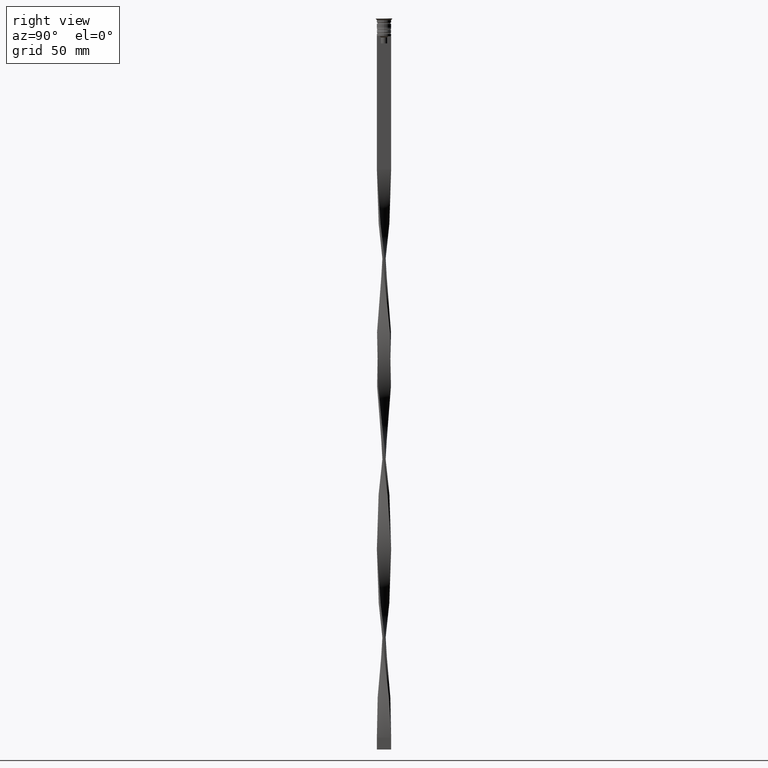
[diagram: clean part render]
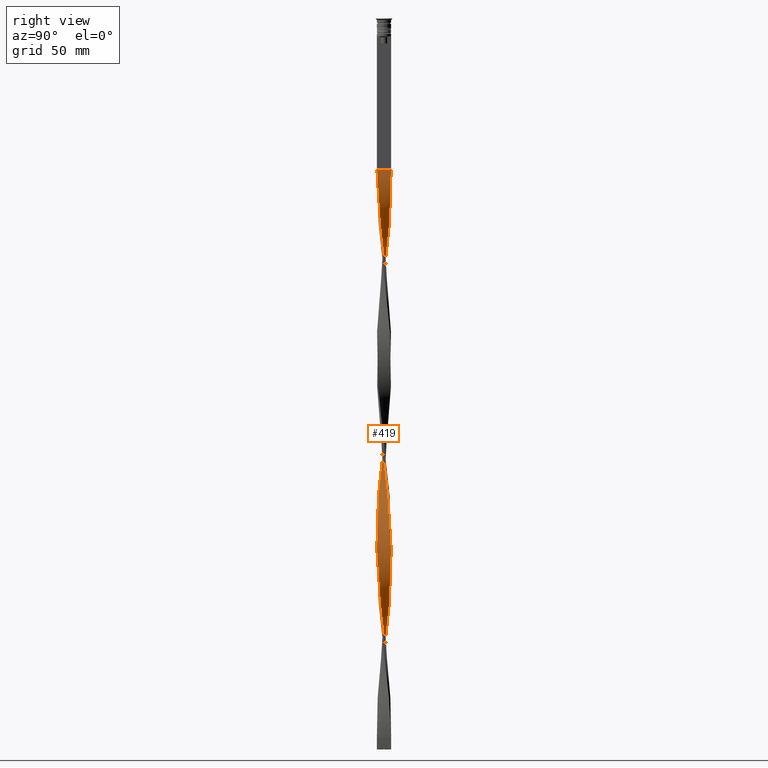
[diagram: same view with one face highlighted and labeled with its STEP entity id]
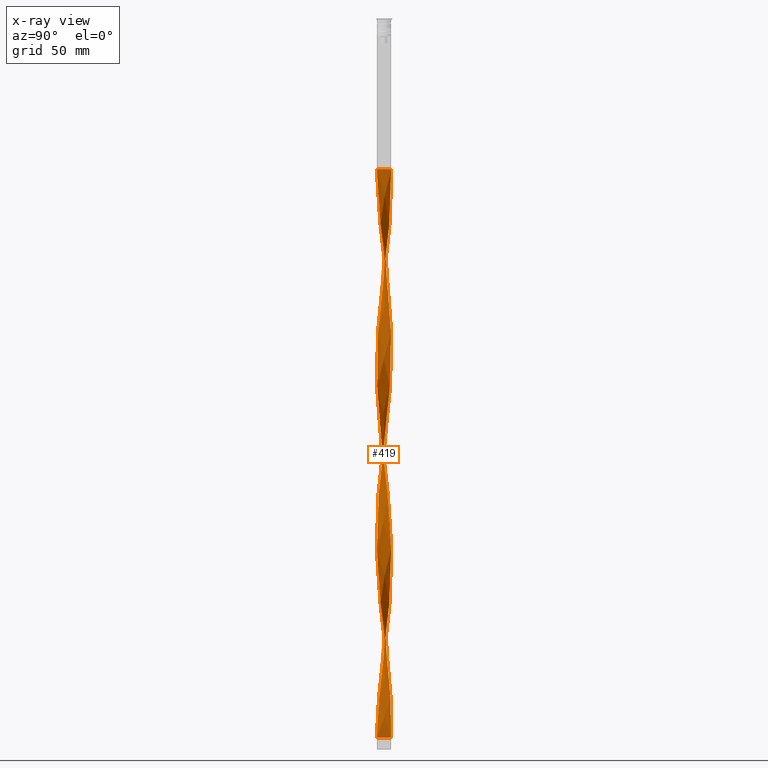
[diagram: x-ray of the same camera — body ghosted, the highlighted face saturated]
A machine part, right view. The second image highlights one B-rep face of the part: STEP entity #419.
The next image is the same camera in x-ray: the body ghosted, the highlighted face saturated — about 0% of this face is hidden behind the body in this view.
In plain terms, the highlighted face is a freeform B-spline surface patch.
Its self-contained STEP definition (entity closure, byte-faithful):
#5 = LINE ( 'NONE', #1583, #2114 ) ;
#7 = CARTESIAN_POINT ( 'NONE',  ( 3.007678046072934652, 0.4515227249772650331, -190.9666666666666686 ) ) ;
#9 = ORIENTED_EDGE ( 'NONE', *, *, #1253, .F. ) ;
#40 = CARTESIAN_POINT ( 'NONE',  ( -1.962543740019620175, 2.335747457686308870, -85.40833333333333144 ) ) ;
#51 = CARTESIAN_POINT ( 'NONE',  ( -2.614000010619525138, -1.572990165913117577, -280.5916666666666970 ) ) ;
#57 = CARTESIAN_POINT ( 'NONE',  ( 0.6882321207821385789, -2.972142436947121436, -153.1250000000000000 ) ) ;
#60 = CARTESIAN_POINT ( 'NONE',  ( -1.807474761312823919, 2.446024322695330877, -155.1166666666666742 ) ) ;
#72 = CARTESIAN_POINT ( 'NONE',  ( -3.007678046072934652, -0.4515227249772653106, -111.3000000000000114 ) ) ;
#77 = CARTESIAN_POINT ( 'NONE',  ( 2.614000010619525138, -1.572990165913117799, -85.40833333333333144 ) ) ;
#96 = CARTESIAN_POINT ( 'NONE',  ( 3.043213655198747869, -0.2148133291723924587, -97.35833333333336270 ) ) ;
#97 = CARTESIAN_POINT ( 'NONE',  ( -3.041282254305528454, 0.02454077517687633381, -107.3166666666666771 ) ) ;
#99 = CARTESIAN_POINT ( 'NONE',  ( -2.614000010619523806, 1.572990165913119354, -165.0749999999999886 ) ) ;
#109 = CARTESIAN_POINT ( 'NONE',  ( -2.335747457686308870, -1.962543740019620397, -284.5750000000001023 ) ) ;
#114 = CARTESIAN_POINT ( 'NONE',  ( -0.02454077517687573706, 3.041282254305528010, -139.1833333333333371 ) ) ;
#115 = CARTESIAN_POINT ( 'NONE',  ( -1.190190010362667916, -2.809046431942904931, -137.1916666666666913 ) ) ;
#117 = CARTESIAN_POINT ( 'NONE',  ( 0.9631475654182614088, -2.884847789265297724, -67.48333333333333428 ) ) ;
#131 = CARTESIAN_POINT ( 'NONE',  ( 0.02454077517687617074, 3.041282254305528454, -67.48333333333333428 ) ) ;
#133 = CARTESIAN_POINT ( 'NONE',  ( -1.572990165913119798, -2.614000010619523806, -204.9083333333333599 ) ) ;
#134 = CARTESIAN_POINT ( 'NONE',  ( 2.335747457686309758, 1.962543740019619731, -204.9083333333333599 ) ) ;
#136 = CARTESIAN_POINT ( 'NONE',  ( 2.614000010619525138, -1.572990165913117799, -244.7416666666667027 ) ) ;
#153 = CARTESIAN_POINT ( 'NONE',  ( -3.007678046072934652, -0.4515227249772653106, -111.3000000000000114 ) ) ;
#155 = CARTESIAN_POINT ( 'NONE',  ( -2.474873734152916338, 1.767766952966369765, -163.0833333333333712 ) ) ;
#158 = CARTESIAN_POINT ( 'NONE',  ( -1.999981050443478514, -2.303772973937591395, -288.5583333333333940 ) ) ;
#162 = CARTESIAN_POINT ( 'NONE',  ( -1.767766952966369765, -2.474873734152915894, -202.9166666666666572 ) ) ;
#175 = CARTESIAN_POINT ( 'NONE',  ( -0.4999999999999995559, 3.000000000000000000, -143.1666666666666572 ) ) ;
#178 = CARTESIAN_POINT ( 'NONE',  ( 3.041282254305528454, 0.02454077517687600768, -258.6833333333333940 ) ) ;
#194 = CARTESIAN_POINT ( 'NONE',  ( 0.2148133291723926808, 3.043213655198747869, -296.5250000000000341 ) ) ;
#213 = CARTESIAN_POINT ( 'NONE',  ( -1.999981050443478514, -2.303772973937590951, -129.2250000000000227 ) ) ;
#219 = CARTESIAN_POINT ( 'NONE',  ( -3.041282254305528010, -0.02454077517687557747, -179.0166666666666515 ) ) ;
#232 = CARTESIAN_POINT ( 'NONE',  ( 3.041282254305528454, -0.02454077517687676749, -186.9833333333333485 ) ) ;
#233 = CARTESIAN_POINT ( 'NONE',  ( 0.6882321207821392450, 2.972142436947121436, -292.5416666666666856 ) ) ;
#235 = CARTESIAN_POINT ( 'NONE',  ( -0.4515227249772654772, 3.007678046072934208, -230.8000000000000114 ) ) ;
#248 = CARTESIAN_POINT ( 'NONE',  ( 1.614968472182172432, 2.588275671453068139, -212.8749999999999716 ) ) ;
#251 = CARTESIAN_POINT ( 'NONE',  ( 0.4515227249772658102, 3.007678046072934208, -294.5333333333333030 ) ) ;
#253 = CARTESIAN_POINT ( 'NONE',  ( -2.809046431942904931, 1.190190010362667472, -256.6916666666666629 ) ) ;
#268 = CARTESIAN_POINT ( 'NONE',  ( -2.303772973937591395, 1.999981050443478514, -248.7250000000000227 ) ) ;
#270 = CARTESIAN_POINT ( 'NONE',  ( 1.402579241272418953, -2.698661051697986757, -230.8000000000000114 ) ) ;
#272 = CARTESIAN_POINT ( 'NONE',  ( -2.900014822434877182, -0.9164682371244562420, -274.6166666666666742 ) ) ;
#293 = CARTESIAN_POINT ( 'NONE',  ( 2.335747457686308870, -1.962543740019620175, -81.42500000000002558 ) ) ;
#294 = CARTESIAN_POINT ( 'NONE',  ( 2.614000010619525138, -1.572990165913118021, -244.7416666666667027 ) ) ;
#296 = CARTESIAN_POINT ( 'NONE',  ( -3.043213655198747869, -0.2148133291723919869, -268.6416666666666515 ) ) ;
#313 = CARTESIAN_POINT ( 'NONE',  ( 2.167864254064893803, 2.133158356978605674, -206.9000000000000057 ) ) ;
#338 = CARTESIAN_POINT ( 'NONE',  ( 2.588275671453068139, -1.614968472182172210, -173.0416666666666856 ) ) ;
#362 = CARTESIAN_POINT ( 'NONE',  ( -2.960649146587690517, 0.7361051204738553455, -101.3416666666666686 ) ) ;
#365 = CARTESIAN_POINT ( 'NONE',  ( -1.614968472182170434, 2.588275671453069915, -153.1250000000000000 ) ) ;
#379 = CARTESIAN_POINT ( 'NONE',  ( 0.02454077517687617074, 3.041282254305528454, -67.48333333333333428 ) ) ;
#393 = CARTESIAN_POINT ( 'NONE',  ( -1.999981050443478070, 2.303772973937592283, -157.1083333333334053 ) ) ;
#394 = CARTESIAN_POINT ( 'NONE',  ( -2.588275671453069027, 1.614968472182170878, -93.37500000000001421 ) ) ;
#414 = CARTESIAN_POINT ( 'NONE',  ( -3.007678046072934208, 0.4515227249772660323, -175.0333333333333599 ) ) ;
#415 = CARTESIAN_POINT ( 'NONE',  ( 1.144704353466773350, -2.827887207922633372, -157.1083333333334053 ) ) ;
#417 = CARTESIAN_POINT ( 'NONE',  ( 1.962543740019620397, 2.335747457686308426, -121.2583333333333400 ) ) ;
#419 = ADVANCED_FACE ( 'NONE', ( #1928 ), #772, .T. ) ;
#429 = CARTESIAN_POINT ( 'NONE',  ( -0.4515227249772654772, 3.007678046072934208, -71.46666666666666856 ) ) ;
#431 = CARTESIAN_POINT ( 'NONE',  ( -2.960649146587690517, -0.7361051204738560116, -184.9916666666666742 ) ) ;
#432 = CARTESIAN_POINT ( 'NONE',  ( -1.190190010362667916, -2.809046431942904931, -296.5250000000000341 ) ) ;
#434 = CARTESIAN_POINT ( 'NONE',  ( 2.827887207922633372, -1.144704353466774460, -89.39166666666667993 ) ) ;
#449 = CARTESIAN_POINT ( 'NONE',  ( -1.572990165913117799, 2.614000010619525138, -81.42500000000001137 ) ) ;
#451 = CARTESIAN_POINT ( 'NONE',  ( 0.9164682371244567971, 2.900014822434876738, -131.2166666666666686 ) ) ;
#452 = CARTESIAN_POINT ( 'NONE',  ( -3.043213655198747869, -0.2148133291723919591, -268.6416666666666515 ) ) ;
#454 = CARTESIAN_POINT ( 'NONE',  ( -1.962543740019620397, -2.335747457686309314, -200.9250000000000398 ) ) ;
#472 = CARTESIAN_POINT ( 'NONE',  ( -0.9631475654182616308, -2.884847789265297280, -139.1833333333333371 ) ) ;
#475 = CARTESIAN_POINT ( 'NONE',  ( -1.358847259689946574, -2.720943609271078589, -206.9000000000000057 ) ) ;
#478 = CARTESIAN_POINT ( 'NONE',  ( 0.9631475654182614088, -2.884847789265297724, -226.8166666666666629 ) ) ;
#498 = CARTESIAN_POINT ( 'NONE',  ( -3.039350853412309483, -0.2638948795261426561, -181.0083333333333258 ) ) ;
#514 = CARTESIAN_POINT ( 'NONE',  ( 1.614968472182170878, -2.588275671453069027, -232.7916666666666856 ) ) ;
#529 = CARTESIAN_POINT ( 'NONE',  ( 0.02454077517687617074, 3.041282254305528454, -226.8166666666666629 ) ) ;
#530 = CARTESIAN_POINT ( 'NONE',  ( 1.358847259689946352, 2.720943609271078589, -286.5666666666667197 ) ) ;
#533 = CARTESIAN_POINT ( 'NONE',  ( 1.962543740019620397, -2.335747457686309758, -165.0749999999999886 ) ) ;
#539 = CARTESIAN_POINT ( 'NONE',  ( -3.000000000000000000, -0.4999999999999993339, -183.0000000000000000 ) ) ;
#554 = CARTESIAN_POINT ( 'NONE',  ( 2.900014822434877182, 0.9164682371244560199, -194.9500000000000171 ) ) ;
#555 = CARTESIAN_POINT ( 'NONE',  ( 3.000000000000000000, 0.4999999999999996669, -262.6666666666667425 ) ) ;
#557 = CARTESIAN_POINT ( 'NONE',  ( -2.303772973937590951, 1.999981050443478514, -248.7250000000000227 ) ) ;
#569 = CARTESIAN_POINT ( 'NONE',  ( -0.9631475654182616308, -2.884847789265297280, -298.5166666666666515 ) ) ;
#572 = CARTESIAN_POINT ( 'NONE',  ( 2.588275671453069471, 1.614968472182170656, -272.6250000000000568 ) ) ;
#574 = CARTESIAN_POINT ( 'NONE',  ( 2.335747457686309758, 1.962543740019619509, -204.9083333333333599 ) ) ;
#587 = CARTESIAN_POINT ( 'NONE',  ( 1.807474761312824141, -2.446024322695330433, -75.45000000000000284 ) ) ;
#589 = CARTESIAN_POINT ( 'NONE',  ( 2.809046431942904931, 1.190190010362667472, -268.6416666666666515 ) ) ;
#591 = CARTESIAN_POINT ( 'NONE',  ( -1.767766952966369098, 2.474873734152916782, -242.7500000000000284 ) ) ;
#613 = CARTESIAN_POINT ( 'NONE',  ( 1.962543740019620175, 2.335747457686308426, -280.5916666666666401 ) ) ;
#615 = CARTESIAN_POINT ( 'NONE',  ( 2.698661051697986757, -1.402579241272419397, -175.0333333333333599 ) ) ;
#625 = EDGE_CURVE ( 'NONE', #3881, #1620, #5, .T. ) ;
#633 = DIRECTION ( 'NONE',  ( 0.000000000000000000, 1.000000000000000000, 0.000000000000000000 ) ) ;
#640 = CARTESIAN_POINT ( 'NONE',  ( -0.9631475654182616308, -2.884847789265297280, -139.1833333333333371 ) ) ;
#659 = CARTESIAN_POINT ( 'NONE',  ( -1.614968472182171100, -2.588275671453069027, -133.2083333333333144 ) ) ;
#664 = CARTESIAN_POINT ( 'NONE',  ( -0.2638948795261441549, 3.039350853412309483, -141.1749999999999829 ) ) ;
#681 = CARTESIAN_POINT ( 'NONE',  ( 2.960649146587690073, -0.7361051204738571219, -181.0083333333333258 ) ) ;
#684 = CARTESIAN_POINT ( 'NONE',  ( 2.698661051697987201, 1.402579241272418953, -111.3000000000000114 ) ) ;
#698 = CARTESIAN_POINT ( 'NONE',  ( -2.133158356978606562, -2.167864254064892027, -198.9333333333333371 ) ) ;
#699 = CARTESIAN_POINT ( 'NONE',  ( -2.335747457686308870, -1.962543740019620175, -125.2416666666667027 ) ) ;
#701 = CARTESIAN_POINT ( 'NONE',  ( -3.007678046072934208, 0.4515227249772660323, -175.0333333333333599 ) ) ;
#715 = CARTESIAN_POINT ( 'NONE',  ( -0.4515227249772663654, -3.007678046072934208, -214.8666666666666742 ) ) ;
#716 = CARTESIAN_POINT ( 'NONE',  ( -2.474873734152916782, -1.767766952966368654, -123.2500000000000000 ) ) ;
#719 = CARTESIAN_POINT ( 'NONE',  ( 2.335747457686308870, -1.962543740019620397, -81.42500000000001137 ) ) ;
#738 = CARTESIAN_POINT ( 'NONE',  ( -3.000000000000000000, -0.4999999999999993339, -183.0000000000000000 ) ) ;
#739 = CARTESIAN_POINT ( 'NONE',  ( -2.972142436947120991, -0.6882321207821388009, -272.6250000000000568 ) ) ;
#741 = CARTESIAN_POINT ( 'NONE',  ( -0.4999999999999995559, 3.000000000000000000, -143.1666666666666572 ) ) ;
#754 = CARTESIAN_POINT ( 'NONE',  ( -3.000000000000000000, 0.5000000000000001110, -103.3333333333333286 ) ) ;
#756 = CARTESIAN_POINT ( 'NONE',  ( 2.809046431942904931, 1.190190010362667472, -109.3083333333333371 ) ) ;
#757 = CARTESIAN_POINT ( 'NONE',  ( -0.4515227249772654772, 3.007678046072934208, -230.8000000000000114 ) ) ;
#759 = CARTESIAN_POINT ( 'NONE',  ( 0.9164682371244567971, 2.900014822434876738, -290.5499999999999545 ) ) ;
#771 = CARTESIAN_POINT ( 'NONE',  ( -1.962543740019620397, 2.335747457686308870, -85.40833333333333144 ) ) ;
#772 =( BOUNDED_SURFACE ( )  B_SPLINE_SURFACE ( 1, 2, ( 
 ( #3385, #3409, #379, #1294, #3066, #2149, #2829, #1607, #2847, #3426, #2210, #40, #1258, #2472, #955, #394, #1315, #3128, #2548, #362, #3688, #2167, #97, #1590, #72, #1875, #3110, #3745, #2806, #1013, #716, #699, #2226, #3706, #1333, #659, #3443, #115, #640, #3092, #3149, #3763, #2772, #3365, #1574, #57, #1853, #415, #1630, #3728, #2510, #2792, #997, #1275, #2488, #338, #1554, #976, #2189, #681, #1892, #1910, #232, #1952, #1034, #1767, #554, #1782, #2358, #1149, #2864, #134, #1354, #3785, #3286, #248, #2062, #1489, #3188, #2569, #1056, #2981, #529, #2964, #757, #2040, #1469, #3261, #2685, #3603, #3579, #3895, #2589, #268, #2270, #1169, #2999, #3466, #3487, #2381, #2706, #1648, #2248, #452, #2884, #739, #871, #2082, #2665, #1450, #1971, #1745, #1667, #158, #3303, #3170, #1377, #432, #569, #851, #3876 ),
 ( #3805, #1131, #2340, #3560, #828, #3019, #587, #1509, #3920, #293, #888, #3318, #1805, #1191, #2400, #3622, #2098, #96, #3486, #2269, #3784, #1074, #3127, #756, #3148, #2209, #3727, #1970, #1907, #3804, #1332, #2546, #3187, #1376, #451, #2863, #1666, #1629, #114, #1395, #175, #2527, #1314, #2287, #3762, #1012, #1030, #393, #3743, #2883, #155, #2588, #1689, #2246, #3465, #3505, #414, #3169, #1606, #996, #738, #431, #1951, #774, #1647, #1986, #3209, #3425, #698, #2828, #2225, #133, #475, #2904, #3440, #1353, #715, #1927, #1055, #2566, #2846, #2667, #2083, #3623, #270, #3304, #889, #3262, #2708, #1490, #3000, #294, #2341, #3921, #2359, #1431, #2938, #1192, #1133, #3021, #555, #1768, #2402, #589, #2100, #572, #3319, #852, #3287, #613, #3340, #1747, #530, #1510, #2984, #233, #251, #3561, #2965, #1806, #2725 ) ),
 .UNSPECIFIED., .F., .F., .F. ) 
 B_SPLINE_SURFACE_WITH_KNOTS ( ( 2, 2 ),
 ( 3, 2, 2, 2, 2, 2, 2, 2, 2, 2, 2, 2, 2, 2, 2, 2, 2, 2, 2, 2, 2, 2, 2, 2, 2, 2, 2, 2, 2, 2, 2, 2, 2, 2, 2, 2, 2, 2, 2, 2, 2, 2, 2, 2, 2, 2, 2, 2, 2, 2, 2, 2, 2, 2, 2, 2, 2, 2, 2, 2, 3 ),
 ( 0.000000000000000000, 1.000000000000000000 ),
 ( 0.000000000000000000, 0.01250000000000000069, 0.02500000000000000139, 0.03749999999999999861, 0.05000000000000000278, 0.06250000000000000000, 0.07499999999999999722, 0.08749999999999999445, 0.1000000000000000056, 0.1125000000000000028, 0.1250000000000000000, 0.1375000000000000111, 0.1499999999999999944, 0.1625000000000000056, 0.1749999999999999889, 0.1875000000000000000, 0.2000000000000000111, 0.2124999999999999944, 0.2250000000000000056, 0.2374999999999999889, 0.2500000000000000000, 0.2625000000000000111, 0.2750000000000000222, 0.2874999999999999778, 0.2999999999999999889, 0.3125000000000000000, 0.3250000000000000111, 0.3375000000000000222, 0.3499999999999999778, 0.3624999999999999889, 0.3750000000000000000, 0.3875000000000000111, 0.4000000000000000222, 0.4124999999999999778, 0.4249999999999999889, 0.4375000000000000000, 0.4500000000000000111, 0.4625000000000000222, 0.4749999999999999778, 0.4874999999999999889, 0.5000000000000000000, 0.5124999999999999556, 0.5250000000000000222, 0.5374999999999999778, 0.5500000000000000444, 0.5625000000000000000, 0.5749999999999999556, 0.5875000000000000222, 0.5999999999999999778, 0.6125000000000000444, 0.6250000000000000000, 0.6374999999999999556, 0.6500000000000000222, 0.6624999999999999778, 0.6750000000000000444, 0.6875000000000000000, 0.6999999999999999556, 0.7125000000000000222, 0.7249999999999999778, 0.7375000000000000444, 0.7500000000000000000 ),
 .UNSPECIFIED. ) 
 GEOMETRIC_REPRESENTATION_ITEM ( )  RATIONAL_B_SPLINE_SURFACE ( (
 ( 1.000000000000000000, 0.9969173337331279638, 1.000000000000000000, 0.9969173337331279638, 1.000000000000000000, 0.9969173337331279638, 1.000000000000000000, 0.9969173337331279638, 1.000000000000000000, 0.9969173337331279638, 1.000000000000000000, 0.9969173337331279638, 1.000000000000000000, 0.9969173337331279638, 1.000000000000000000, 0.9969173337331279638, 1.000000000000000000, 0.9969173337331279638, 1.000000000000000000, 0.9969173337331279638, 1.000000000000000000, 0.9969173337331279638, 1.000000000000000000, 0.9969173337331279638, 1.000000000000000000, 0.9969173337331279638, 1.000000000000000000, 0.9969173337331279638, 1.000000000000000000, 0.9969173337331279638, 1.000000000000000000, 0.9969173337331279638, 1.000000000000000000, 0.9969173337331279638, 1.000000000000000000, 0.9969173337331279638, 1.000000000000000000, 0.9969173337331279638, 1.000000000000000000, 0.9969173337331279638, 1.000000000000000000, 0.9969173337331279638, 1.000000000000000000, 0.9969173337331279638, 1.000000000000000000, 0.9969173337331279638, 1.000000000000000000, 0.9969173337331279638, 1.000000000000000000, 0.9969173337331279638, 1.000000000000000000, 0.9969173337331279638, 1.000000000000000000, 0.9969173337331279638, 1.000000000000000000, 0.9969173337331279638, 1.000000000000000000, 0.9969173337331279638, 1.000000000000000000, 0.9969173337331279638, 1.000000000000000000, 0.9969173337331279638, 1.000000000000000000, 0.9969173337331279638, 1.000000000000000000, 0.9969173337331279638, 1.000000000000000000, 0.9969173337331279638, 1.000000000000000000, 0.9969173337331279638, 1.000000000000000000, 0.9969173337331279638, 1.000000000000000000, 0.9969173337331279638, 1.000000000000000000, 0.9969173337331279638, 1.000000000000000000, 0.9969173337331279638, 1.000000000000000000, 0.9969173337331279638, 1.000000000000000000, 0.9969173337331279638, 1.000000000000000000, 0.9969173337331279638, 1.000000000000000000, 0.9969173337331279638, 1.000000000000000000, 0.9969173337331279638, 1.000000000000000000, 0.9969173337331279638, 1.000000000000000000, 0.9969173337331279638, 1.000000000000000000, 0.9969173337331279638, 1.000000000000000000, 0.9969173337331279638, 1.000000000000000000, 0.9969173337331279638, 1.000000000000000000, 0.9969173337331279638, 1.000000000000000000, 0.9969173337331279638, 1.000000000000000000, 0.9969173337331279638, 1.000000000000000000, 0.9969173337331279638, 1.000000000000000000, 0.9969173337331279638, 1.000000000000000000, 0.9969173337331279638, 1.000000000000000000, 0.9969173337331279638, 1.000000000000000000, 0.9969173337331279638, 1.000000000000000000, 0.9969173337331279638, 1.000000000000000000, 0.9969173337331279638, 1.000000000000000000, 0.9969173337331279638, 1.000000000000000000),
 ( 1.000000000000000000, 0.9969173337331279638, 1.000000000000000000, 0.9969173337331279638, 1.000000000000000000, 0.9969173337331279638, 1.000000000000000000, 0.9969173337331279638, 1.000000000000000000, 0.9969173337331279638, 1.000000000000000000, 0.9969173337331279638, 1.000000000000000000, 0.9969173337331279638, 1.000000000000000000, 0.9969173337331279638, 1.000000000000000000, 0.9969173337331279638, 1.000000000000000000, 0.9969173337331279638, 1.000000000000000000, 0.9969173337331279638, 1.000000000000000000, 0.9969173337331279638, 1.000000000000000000, 0.9969173337331279638, 1.000000000000000000, 0.9969173337331279638, 1.000000000000000000, 0.9969173337331279638, 1.000000000000000000, 0.9969173337331279638, 1.000000000000000000, 0.9969173337331279638, 1.000000000000000000, 0.9969173337331279638, 1.000000000000000000, 0.9969173337331279638, 1.000000000000000000, 0.9969173337331279638, 1.000000000000000000, 0.9969173337331279638, 1.000000000000000000, 0.9969173337331279638, 1.000000000000000000, 0.9969173337331279638, 1.000000000000000000, 0.9969173337331279638, 1.000000000000000000, 0.9969173337331279638, 1.000000000000000000, 0.9969173337331279638, 1.000000000000000000, 0.9969173337331279638, 1.000000000000000000, 0.9969173337331279638, 1.000000000000000000, 0.9969173337331279638, 1.000000000000000000, 0.9969173337331279638, 1.000000000000000000, 0.9969173337331279638, 1.000000000000000000, 0.9969173337331279638, 1.000000000000000000, 0.9969173337331279638, 1.000000000000000000, 0.9969173337331279638, 1.000000000000000000, 0.9969173337331279638, 1.000000000000000000, 0.9969173337331279638, 1.000000000000000000, 0.9969173337331279638, 1.000000000000000000, 0.9969173337331279638, 1.000000000000000000, 0.9969173337331279638, 1.000000000000000000, 0.9969173337331279638, 1.000000000000000000, 0.9969173337331279638, 1.000000000000000000, 0.9969173337331279638, 1.000000000000000000, 0.9969173337331279638, 1.000000000000000000, 0.9969173337331279638, 1.000000000000000000, 0.9969173337331279638, 1.000000000000000000, 0.9969173337331279638, 1.000000000000000000, 0.9969173337331279638, 1.000000000000000000, 0.9969173337331279638, 1.000000000000000000, 0.9969173337331279638, 1.000000000000000000, 0.9969173337331279638, 1.000000000000000000, 0.9969173337331279638, 1.000000000000000000, 0.9969173337331279638, 1.000000000000000000, 0.9969173337331279638, 1.000000000000000000, 0.9969173337331279638, 1.000000000000000000, 0.9969173337331279638, 1.000000000000000000, 0.9969173337331279638, 1.000000000000000000, 0.9969173337331279638, 1.000000000000000000, 0.9969173337331279638, 1.000000000000000000, 0.9969173337331279638, 1.000000000000000000, 0.9969173337331279638, 1.000000000000000000) ) ) 
 REPRESENTATION_ITEM ( '' )  SURFACE ( )  );
#774 = CARTESIAN_POINT ( 'NONE',  ( -2.809046431942905819, -1.190190010362665918, -188.9750000000000512 ) ) ;
#776 = CARTESIAN_POINT ( 'NONE',  ( -0.4515227249772663654, -3.007678046072934208, -214.8666666666666742 ) ) ;
#795 = CARTESIAN_POINT ( 'NONE',  ( -2.303772973937590951, 1.999981050443478514, -89.39166666666667993 ) ) ;
#801 = CARTESIAN_POINT ( 'NONE',  ( 2.303772973937591839, 1.999981050443478514, -276.6083333333333485 ) ) ;
#807 = CARTESIAN_POINT ( 'NONE',  ( -0.5000000000000002220, -3.000000000000000000, -302.5000000000000000 ) ) ;
#815 = VERTEX_POINT ( 'NONE', #2581 ) ;
#818 = CARTESIAN_POINT ( 'NONE',  ( -0.2638948795261441549, 3.039350853412309483, -300.5083333333334394 ) ) ;
#828 = CARTESIAN_POINT ( 'NONE',  ( 1.402579241272418953, -2.698661051697986757, -71.46666666666666856 ) ) ;
#831 = CARTESIAN_POINT ( 'NONE',  ( 3.041282254305528454, -0.02454077517687676749, -186.9833333333333485 ) ) ;
#836 = CARTESIAN_POINT ( 'NONE',  ( -2.588275671453068583, -1.614968472182171322, -192.9583333333333428 ) ) ;
#851 = CARTESIAN_POINT ( 'NONE',  ( -0.7361051204738555676, -2.960649146587690517, -300.5083333333334394 ) ) ;
#852 = CARTESIAN_POINT ( 'NONE',  ( 2.303772973937592283, 1.999981050443478514, -276.6083333333332916 ) ) ;
#855 = CARTESIAN_POINT ( 'NONE',  ( 0.02454077517687617074, 3.041282254305528454, -226.8166666666666629 ) ) ;
#871 = CARTESIAN_POINT ( 'NONE',  ( -2.900014822434877182, -0.9164682371244562420, -274.6166666666666742 ) ) ;
#874 = CARTESIAN_POINT ( 'NONE',  ( -3.039350853412309483, 0.2638948795261447100, -264.6583333333333030 ) ) ;
#888 = CARTESIAN_POINT ( 'NONE',  ( 2.474873734152916782, -1.767766952966369098, -83.41666666666667140 ) ) ;
#889 = CARTESIAN_POINT ( 'NONE',  ( 1.807474761312824141, -2.446024322695330433, -234.7833333333333314 ) ) ;
#891 = CARTESIAN_POINT ( 'NONE',  ( -0.9164682371244562420, 2.900014822434877182, -234.7833333333333314 ) ) ;
#900 =( BOUNDED_CURVE ( )  B_SPLINE_CURVE ( 2, ( #2228, #2170, #117, #1592, #2810, #1015, #1632, #3445, #3130, #719, #1895, #77, #1650, #434, #2795, #1577, #1335, #1298, #2492, #2513, #2550, #1954, #3765, #3172, #684, #1038, #1935, #3153, #1912, #417, #3730, #1261, #3113, #2475, #3693, #2252, #1317, #3471, #1611, #664, #741, #3095, #959, #1879, #999, #365, #60, #2530, #2831, #3711, #980, #99, #2193, #3412, #2212, #3428, #701, #3747, #219, #498, #539, #2011, #2867, #2888, #1671, #836, #2947, #2654, #2593, #454, #162, #3529, #1381, #1439, #2048, #1728, #776, #3865, #2289, #1119, #1139, #2348, #478, #1693, #3844, #514, #2329, #3232, #3548, #1990, #3212, #136, #3271, #3807, #1076, #3569, #2908, #3507, #178, #2272, #1397, #3791, #1710, #2609, #3824, #1095, #2309, #801, #2924, #1358, #1061, #2573, #3489, #2632, #759, #1973, #3191, #194, #1415, #818, #2029 ),
 .UNSPECIFIED., .F., .T. ) 
 B_SPLINE_CURVE_WITH_KNOTS ( ( 3, 2, 2, 2, 2, 2, 2, 2, 2, 2, 2, 2, 2, 2, 2, 2, 2, 2, 2, 2, 2, 2, 2, 2, 2, 2, 2, 2, 2, 2, 2, 2, 2, 2, 2, 2, 2, 2, 2, 2, 2, 2, 2, 2, 2, 2, 2, 2, 2, 2, 2, 2, 2, 2, 2, 2, 2, 2, 2, 2, 3 ),
 ( 0.000000000000000000, 0.01250000000000000243, 0.02500000000000000486, 0.03749999999999999861, 0.05000000000000000971, 0.06250000000000000000, 0.07499999999999999722, 0.08749999999999998057, 0.1000000000000000194, 0.1125000000000000028, 0.1250000000000000000, 0.1375000000000000111, 0.1499999999999999944, 0.1625000000000000056, 0.1749999999999999611, 0.1875000000000000000, 0.2000000000000000389, 0.2124999999999999944, 0.2250000000000000056, 0.2374999999999999611, 0.2500000000000000000, 0.2625000000000000111, 0.2750000000000000222, 0.2874999999999999778, 0.2999999999999999889, 0.3125000000000000000, 0.3250000000000000111, 0.3375000000000000777, 0.3499999999999999223, 0.3624999999999999889, 0.3750000000000000000, 0.3875000000000000111, 0.4000000000000000777, 0.4124999999999999223, 0.4249999999999999889, 0.4375000000000000000, 0.4500000000000000111, 0.4625000000000000777, 0.4749999999999999223, 0.4874999999999999889, 0.5000000000000000000, 0.5124999999999999556, 0.5250000000000000222, 0.5374999999999999778, 0.5500000000000000444, 0.5625000000000000000, 0.5749999999999999556, 0.5875000000000000222, 0.5999999999999999778, 0.6125000000000000444, 0.6250000000000000000, 0.6374999999999999556, 0.6500000000000000222, 0.6624999999999999778, 0.6750000000000001554, 0.6875000000000000000, 0.6999999999999998446, 0.7125000000000000222, 0.7249999999999999778, 0.7375000000000001554, 0.7500000000000000000 ),
 .UNSPECIFIED. ) 
 CURVE ( )  GEOMETRIC_REPRESENTATION_ITEM ( )  RATIONAL_B_SPLINE_CURVE ( ( 1.000000000000000000, 0.9969173337331279638, 1.000000000000000000, 0.9969173337331279638, 1.000000000000000000, 0.9969173337331279638, 1.000000000000000000, 0.9969173337331279638, 1.000000000000000000, 0.9969173337331279638, 1.000000000000000000, 0.9969173337331279638, 1.000000000000000000, 0.9969173337331279638, 1.000000000000000000, 0.9969173337331279638, 1.000000000000000000, 0.9969173337331279638, 1.000000000000000000, 0.9969173337331279638, 1.000000000000000000, 0.9969173337331279638, 1.000000000000000000, 0.9969173337331279638, 1.000000000000000000, 0.9969173337331279638, 1.000000000000000000, 0.9969173337331279638, 1.000000000000000000, 0.9969173337331279638, 1.000000000000000000, 0.9969173337331279638, 1.000000000000000000, 0.9969173337331279638, 1.000000000000000000, 0.9969173337331279638, 1.000000000000000000, 0.9969173337331279638, 1.000000000000000000, 0.9969173337331279638, 1.000000000000000000, 0.9969173337331279638, 1.000000000000000000, 0.9969173337331279638, 1.000000000000000000, 0.9969173337331279638, 1.000000000000000000, 0.9969173337331279638, 1.000000000000000000, 0.9969173337331279638, 1.000000000000000000, 0.9969173337331279638, 1.000000000000000000, 0.9969173337331279638, 1.000000000000000000, 0.9969173337331279638, 1.000000000000000000, 0.9969173337331279638, 1.000000000000000000, 0.9969173337331279638, 1.000000000000000000, 0.9969173337331279638, 1.000000000000000000, 0.9969173337331279638, 1.000000000000000000, 0.9969173337331279638, 1.000000000000000000, 0.9969173337331279638, 1.000000000000000000, 0.9969173337331279638, 1.000000000000000000, 0.9969173337331279638, 1.000000000000000000, 0.9969173337331279638, 1.000000000000000000, 0.9969173337331279638, 1.000000000000000000, 0.9969173337331279638, 1.000000000000000000, 0.9969173337331279638, 1.000000000000000000, 0.9969173337331279638, 1.000000000000000000, 0.9969173337331279638, 1.000000000000000000, 0.9969173337331279638, 1.000000000000000000, 0.9969173337331279638, 1.000000000000000000, 0.9969173337331279638, 1.000000000000000000, 0.9969173337331279638, 1.000000000000000000, 0.9969173337331279638, 1.000000000000000000, 0.9969173337331279638, 1.000000000000000000, 0.9969173337331279638, 1.000000000000000000, 0.9969173337331279638, 1.000000000000000000, 0.9969173337331279638, 1.000000000000000000, 0.9969173337331279638, 1.000000000000000000, 0.9969173337331279638, 1.000000000000000000, 0.9969173337331279638, 1.000000000000000000, 0.9969173337331279638, 1.000000000000000000, 0.9969173337331279638, 1.000000000000000000, 0.9969173337331279638, 1.000000000000000000, 0.9969173337331279638, 1.000000000000000000, 0.9969173337331279638, 1.000000000000000000, 0.9969173337331279638, 1.000000000000000000 ) ) 
 REPRESENTATION_ITEM ( '' )  );
#910 = CARTESIAN_POINT ( 'NONE',  ( -2.446024322695329989, 1.807474761312824363, -250.7166666666666970 ) ) ;
#914 = EDGE_CURVE ( 'NONE', #3453, #815, #1722, .T. ) ;
#950 = CARTESIAN_POINT ( 'NONE',  ( -1.402579241272419397, -2.698661051697986757, -294.5333333333333030 ) ) ;
#955 = CARTESIAN_POINT ( 'NONE',  ( -2.446024322695329989, 1.807474761312824363, -91.38333333333333997 ) ) ;
#959 = CARTESIAN_POINT ( 'NONE',  ( -0.9631475654182609647, 2.884847789265297724, -147.1500000000000057 ) ) ;
#976 = CARTESIAN_POINT ( 'NONE',  ( 2.809046431942904931, -1.190190010362666806, -177.0250000000000341 ) ) ;
#980 = CARTESIAN_POINT ( 'NONE',  ( -2.474873734152916338, 1.767766952966369765, -163.0833333333333712 ) ) ;
#996 = CARTESIAN_POINT ( 'NONE',  ( -3.039350853412309483, -0.2638948795261427116, -181.0083333333333258 ) ) ;
#997 = CARTESIAN_POINT ( 'NONE',  ( 2.133158356978605674, -2.167864254064893359, -167.0666666666666629 ) ) ;
#999 = CARTESIAN_POINT ( 'NONE',  ( -1.402579241272418731, 2.698661051697987201, -151.1333333333333542 ) ) ;
#1012 = CARTESIAN_POINT ( 'NONE',  ( -1.614968472182170434, 2.588275671453069915, -153.1250000000000000 ) ) ;
#1013 = CARTESIAN_POINT ( 'NONE',  ( -2.614000010619525138, -1.572990165913117577, -121.2583333333333400 ) ) ;
#1015 = CARTESIAN_POINT ( 'NONE',  ( 1.614968472182170878, -2.588275671453069027, -73.45833333333334281 ) ) ;
#1030 = CARTESIAN_POINT ( 'NONE',  ( -1.807474761312823919, 2.446024322695330877, -155.1166666666666742 ) ) ;
#1034 = CARTESIAN_POINT ( 'NONE',  ( 3.007678046072934652, 0.4515227249772650331, -190.9666666666666686 ) ) ;
#1038 = CARTESIAN_POINT ( 'NONE',  ( 2.588275671453069471, 1.614968472182170656, -113.2916666666666998 ) ) ;
#1053 = CARTESIAN_POINT ( 'NONE',  ( -0.7361051204738556786, -2.960649146587690961, -141.1749999999999829 ) ) ;
#1055 = CARTESIAN_POINT ( 'NONE',  ( 0.02454077517687541440, -3.041282254305528010, -218.8500000000000227 ) ) ;
#1056 = CARTESIAN_POINT ( 'NONE',  ( 0.4999999999999998890, 3.000000000000000000, -222.8333333333333144 ) ) ;
#1061 = CARTESIAN_POINT ( 'NONE',  ( 1.767766952966369320, 2.474873734152916338, -282.5833333333333712 ) ) ;
#1072 = CARTESIAN_POINT ( 'NONE',  ( -0.2638948795261449320, -3.039350853412309483, -145.1583333333333314 ) ) ;
#1074 = CARTESIAN_POINT ( 'NONE',  ( 2.960649146587690517, 0.7361051204738550124, -105.3249999999999886 ) ) ;
#1076 = CARTESIAN_POINT ( 'NONE',  ( 2.900014822434876738, -0.9164682371244565751, -250.7166666666666970 ) ) ;
#1091 = CARTESIAN_POINT ( 'NONE',  ( -2.614000010619525138, -1.572990165913117577, -121.2583333333333400 ) ) ;
#1095 = CARTESIAN_POINT ( 'NONE',  ( 2.588275671453069471, 1.614968472182170656, -272.6250000000000568 ) ) ;
#1119 = CARTESIAN_POINT ( 'NONE',  ( 0.2638948795261425451, -3.039350853412309483, -220.8416666666667254 ) ) ;
#1131 = CARTESIAN_POINT ( 'NONE',  ( 0.7361051204738551235, -2.960649146587690517, -65.49166666666666003 ) ) ;
#1133 = CARTESIAN_POINT ( 'NONE',  ( 3.041282254305528454, 0.02454077517687600768, -258.6833333333333940 ) ) ;
#1139 = CARTESIAN_POINT ( 'NONE',  ( 0.4999999999999998890, -3.000000000000000000, -222.8333333333333144 ) ) ;
#1149 = CARTESIAN_POINT ( 'NONE',  ( 2.614000010619524250, 1.572990165913118688, -200.9250000000000682 ) ) ;
#1152 = CARTESIAN_POINT ( 'NONE',  ( -1.144704353466774016, 2.827887207922633372, -236.7750000000000341 ) ) ;
#1169 = CARTESIAN_POINT ( 'NONE',  ( -2.588275671453069027, 1.614968472182170878, -252.7083333333332860 ) ) ;
#1173 = CARTESIAN_POINT ( 'NONE',  ( 1.999981050443478070, 2.303772973937591839, -208.8916666666667084 ) ) ;
#1191 = CARTESIAN_POINT ( 'NONE',  ( 2.827887207922633372, -1.144704353466774238, -89.39166666666667993 ) ) ;
#1192 = CARTESIAN_POINT ( 'NONE',  ( 3.043213655198747869, -0.2148133291723924587, -256.6916666666666629 ) ) ;
#1194 = CARTESIAN_POINT ( 'NONE',  ( 2.809046431942904931, -1.190190010362666806, -177.0250000000000057 ) ) ;
#1211 = CARTESIAN_POINT ( 'NONE',  ( 2.960649146587690517, -0.7361051204738571219, -181.0083333333333258 ) ) ;
#1231 = CARTESIAN_POINT ( 'NONE',  ( 1.767766952966368654, -2.474873734152917226, -163.0833333333333712 ) ) ;
#1250 = CARTESIAN_POINT ( 'NONE',  ( -1.999981050443478514, -2.303772973937590951, -288.5583333333333940 ) ) ;
#1253 = EDGE_CURVE ( 'NONE', #1620, #3453, #2424, .T. ) ;
#1258 = CARTESIAN_POINT ( 'NONE',  ( -2.133158356978606118, 2.167864254064892915, -87.40000000000000568 ) ) ;
#1261 = CARTESIAN_POINT ( 'NONE',  ( 1.572990165913117799, 2.614000010619525138, -125.2416666666667027 ) ) ;
#1269 = CARTESIAN_POINT ( 'NONE',  ( -1.614968472182171100, -2.588275671453069027, -292.5416666666666856 ) ) ;
#1275 = CARTESIAN_POINT ( 'NONE',  ( 2.303772973937592283, -1.999981050443477626, -169.0583333333333655 ) ) ;
#1294 = CARTESIAN_POINT ( 'NONE',  ( -0.2148133291723922367, 3.043213655198747869, -69.47499999999999432 ) ) ;
#1298 = CARTESIAN_POINT ( 'NONE',  ( 3.043213655198747869, -0.2148133291723924865, -97.35833333333334849 ) ) ;
#1314 = CARTESIAN_POINT ( 'NONE',  ( -0.9631475654182609647, 2.884847789265297724, -147.1500000000000057 ) ) ;
#1315 = CARTESIAN_POINT ( 'NONE',  ( -2.698661051697986757, 1.402579241272419175, -95.36666666666667425 ) ) ;
#1317 = CARTESIAN_POINT ( 'NONE',  ( 0.4515227249772658102, 3.007678046072934208, -135.1999999999999886 ) ) ;
#1326 = CARTESIAN_POINT ( 'NONE',  ( -2.474873734152916782, -1.767766952966368654, -282.5833333333333712 ) ) ;
#1332 = CARTESIAN_POINT ( 'NONE',  ( 1.767766952966369320, 2.474873734152916338, -123.2500000000000000 ) ) ;
#1333 = CARTESIAN_POINT ( 'NONE',  ( -1.807474761312824363, -2.446024322695329989, -131.2166666666666686 ) ) ;
#1335 = CARTESIAN_POINT ( 'NONE',  ( 3.007678046072934208, -0.4515227249772656992, -95.36666666666667425 ) ) ;
#1350 = CARTESIAN_POINT ( 'NONE',  ( -2.809046431942904931, 1.190190010362667472, -97.35833333333334849 ) ) ;
#1353 = CARTESIAN_POINT ( 'NONE',  ( -0.6882321207821410214, -2.972142436947120547, -212.8749999999999716 ) ) ;
#1354 = CARTESIAN_POINT ( 'NONE',  ( 2.167864254064893803, 2.133158356978605674, -206.9000000000000057 ) ) ;
#1358 = CARTESIAN_POINT ( 'NONE',  ( 1.962543740019620397, 2.335747457686308426, -280.5916666666666970 ) ) ;
#1373 = CARTESIAN_POINT ( 'NONE',  ( -2.474873734152916782, -1.767766952966368654, -123.2500000000000000 ) ) ;
#1376 = CARTESIAN_POINT ( 'NONE',  ( 1.144704353466774238, 2.827887207922633372, -129.2250000000000512 ) ) ;
#1377 = CARTESIAN_POINT ( 'NONE',  ( -1.402579241272419397, -2.698661051697986757, -294.5333333333333030 ) ) ;
#1381 = CARTESIAN_POINT ( 'NONE',  ( -1.358847259689946574, -2.720943609271078589, -206.9000000000000057 ) ) ;
#1393 = CARTESIAN_POINT ( 'NONE',  ( -2.720943609271079033, -1.358847259689945686, -119.2666666666666799 ) ) ;
#1395 = CARTESIAN_POINT ( 'NONE',  ( -0.2638948795261441549, 3.039350853412309039, -141.1749999999999829 ) ) ;
#1397 = CARTESIAN_POINT ( 'NONE',  ( 3.000000000000000000, 0.4999999999999996669, -262.6666666666667425 ) ) ;
#1410 = CARTESIAN_POINT ( 'NONE',  ( -2.827887207922633372, -1.144704353466774016, -117.2750000000000199 ) ) ;
#1415 = CARTESIAN_POINT ( 'NONE',  ( -0.02454077517687573706, 3.041282254305528010, -298.5166666666666515 ) ) ;
#1431 = CARTESIAN_POINT ( 'NONE',  ( 2.972142436947121436, -0.6882321207821390230, -252.7083333333332860 ) ) ;
#1439 = CARTESIAN_POINT ( 'NONE',  ( -1.144704353466773572, -2.827887207922633372, -208.8916666666667084 ) ) ;
#1450 = CARTESIAN_POINT ( 'NONE',  ( -2.614000010619525138, -1.572990165913117577, -280.5916666666666401 ) ) ;
#1455 = CARTESIAN_POINT ( 'NONE',  ( 2.884847789265297280, -0.9631475654182618529, -179.0166666666666515 ) ) ;
#1469 = CARTESIAN_POINT ( 'NONE',  ( -0.9164682371244562420, 2.900014822434877182, -234.7833333333333314 ) ) ;
#1472 = CARTESIAN_POINT ( 'NONE',  ( 3.043213655198747869, 0.2148133291723903215, -188.9750000000000227 ) ) ;
#1489 = CARTESIAN_POINT ( 'NONE',  ( 1.190190010362667028, 2.809046431942904931, -216.8583333333333769 ) ) ;
#1490 = CARTESIAN_POINT ( 'NONE',  ( 2.335747457686308870, -1.962543740019620175, -240.7583333333333542 ) ) ;
#1492 = CARTESIAN_POINT ( 'NONE',  ( -2.827887207922633372, -1.144704353466774016, -276.6083333333333485 ) ) ;
#1509 = CARTESIAN_POINT ( 'NONE',  ( 1.999981050443478514, -2.303772973937592283, -77.44166666666669130 ) ) ;
#1510 = CARTESIAN_POINT ( 'NONE',  ( 1.144704353466774238, 2.827887207922633372, -288.5583333333333940 ) ) ;
#1512 = CARTESIAN_POINT ( 'NONE',  ( 2.133158356978605674, -2.167864254064893359, -167.0666666666666629 ) ) ;
#1528 = CARTESIAN_POINT ( 'NONE',  ( 2.474873734152917226, 1.767766952966368210, -202.9166666666666572 ) ) ;
#1554 = CARTESIAN_POINT ( 'NONE',  ( 2.698661051697986757, -1.402579241272419397, -175.0333333333333599 ) ) ;
#1567 = CARTESIAN_POINT ( 'NONE',  ( -2.720943609271079033, -1.358847259689945686, -278.6000000000000227 ) ) ;
#1574 = CARTESIAN_POINT ( 'NONE',  ( 0.4515227249772650886, -3.007678046072934652, -151.1333333333333542 ) ) ;
#1577 = CARTESIAN_POINT ( 'NONE',  ( 2.972142436947121436, -0.6882321207821390230, -93.37500000000001421 ) ) ;
#1583 = CARTESIAN_POINT ( 'NONE',  ( 0.4999999999999998890, -3.000000000000000000, -63.50000000000000000 ) ) ;
#1590 = CARTESIAN_POINT ( 'NONE',  ( -3.043213655198747869, -0.2148133291723919591, -109.3083333333333371 ) ) ;
#1592 = CARTESIAN_POINT ( 'NONE',  ( 1.190190010362667472, -2.809046431942904931, -69.47499999999999432 ) ) ;
#1606 = CARTESIAN_POINT ( 'NONE',  ( -3.041282254305528010, -0.02454077517687557747, -179.0166666666666515 ) ) ;
#1607 = CARTESIAN_POINT ( 'NONE',  ( -1.144704353466773794, 2.827887207922633372, -77.44166666666669130 ) ) ;
#1611 = CARTESIAN_POINT ( 'NONE',  ( -0.02454077517687573706, 3.041282254305528010, -139.1833333333333371 ) ) ;
#1620 = VERTEX_POINT ( 'NONE', #3182 ) ;
#1629 = CARTESIAN_POINT ( 'NONE',  ( 0.2148133291723926808, 3.043213655198747869, -137.1916666666666913 ) ) ;
#1630 = CARTESIAN_POINT ( 'NONE',  ( 1.358847259689945686, -2.720943609271079033, -159.1000000000000227 ) ) ;
#1632 = CARTESIAN_POINT ( 'NONE',  ( 1.807474761312824141, -2.446024322695330433, -75.45000000000000284 ) ) ;
#1640 = CARTESIAN_POINT ( 'NONE',  ( -0.5000000000000000000, -1.000000000000000000, -302.5000000000000000 ) ) ;
#1645 = CARTESIAN_POINT ( 'NONE',  ( -1.767766952966369098, 2.474873734152916782, -83.41666666666667140 ) ) ;
#1647 = CARTESIAN_POINT ( 'NONE',  ( -2.698661051697987201, -1.402579241272418509, -190.9666666666666686 ) ) ;
#1648 = CARTESIAN_POINT ( 'NONE',  ( -3.039350853412309039, 0.2638948795261447100, -264.6583333333333599 ) ) ;
#1650 = CARTESIAN_POINT ( 'NONE',  ( 2.720943609271079033, -1.358847259689946130, -87.40000000000000568 ) ) ;
#1666 = CARTESIAN_POINT ( 'NONE',  ( 0.4515227249772658102, 3.007678046072934208, -135.1999999999999886 ) ) ;
#1667 = CARTESIAN_POINT ( 'NONE',  ( -2.167864254064893359, -2.133158356978605674, -286.5666666666667197 ) ) ;
#1671 = CARTESIAN_POINT ( 'NONE',  ( -2.698661051697987201, -1.402579241272418509, -190.9666666666666686 ) ) ;
#1686 = CARTESIAN_POINT ( 'NONE',  ( -0.02454077517687660442, -3.041282254305528454, -147.1500000000000057 ) ) ;
#1689 = CARTESIAN_POINT ( 'NONE',  ( -2.720943609271078589, 1.358847259689946352, -167.0666666666666629 ) ) ;
#1693 = CARTESIAN_POINT ( 'NONE',  ( 1.190190010362667472, -2.809046431942904931, -228.8083333333333655 ) ) ;
#1705 = CARTESIAN_POINT ( 'NONE',  ( -0.6882321207821390230, 2.972142436947121436, -73.45833333333334281 ) ) ;
#1710 = CARTESIAN_POINT ( 'NONE',  ( 2.884847789265297724, 0.9631475654182612978, -266.6499999999999773 ) ) ;
#1722 = B_SPLINE_CURVE_WITH_KNOTS ( 'NONE', 3,
 ( #2873, #1640, #3180, #2297 ),
 .UNSPECIFIED., .F., .F.,
 ( 4, 4 ),
 ( 0.000000000000000000, 1.000000000000000000 ),
 .UNSPECIFIED. ) ;
#1723 = CARTESIAN_POINT ( 'NONE',  ( -3.039350853412309483, 0.2638948795261447100, -105.3250000000000028 ) ) ;
#1728 = CARTESIAN_POINT ( 'NONE',  ( -0.6882321207821410214, -2.972142436947120547, -212.8750000000000000 ) ) ;
#1745 = CARTESIAN_POINT ( 'NONE',  ( -2.335747457686308870, -1.962543740019620175, -284.5750000000001023 ) ) ;
#1747 = CARTESIAN_POINT ( 'NONE',  ( 1.572990165913118021, 2.614000010619525138, -284.5750000000001023 ) ) ;
#1749 = CARTESIAN_POINT ( 'NONE',  ( 0.4999999999999998890, 3.000000000000000000, -222.8333333333333144 ) ) ;
#1767 = CARTESIAN_POINT ( 'NONE',  ( 2.972142436947120991, 0.6882321207821398001, -192.9583333333333428 ) ) ;
#1768 = CARTESIAN_POINT ( 'NONE',  ( 2.960649146587690517, 0.7361051204738550124, -264.6583333333333599 ) ) ;
#1769 = CARTESIAN_POINT ( 'NONE',  ( -2.698661051697986757, 1.402579241272419175, -254.7000000000000455 ) ) ;
#1782 = CARTESIAN_POINT ( 'NONE',  ( 2.827887207922633817, 1.144704353466772462, -196.9416666666667197 ) ) ;
#1787 = CARTESIAN_POINT ( 'NONE',  ( -3.007678046072934652, -0.4515227249772653106, -270.6333333333333258 ) ) ;
#1805 = CARTESIAN_POINT ( 'NONE',  ( 2.720943609271079033, -1.358847259689946130, -87.40000000000000568 ) ) ;
#1806 = CARTESIAN_POINT ( 'NONE',  ( -0.2638948795261441549, 3.039350853412309039, -300.5083333333334394 ) ) ;
#1809 = CARTESIAN_POINT ( 'NONE',  ( 3.000000000000000000, -0.5000000000000004441, -183.0000000000000000 ) ) ;
#1830 = CARTESIAN_POINT ( 'NONE',  ( 2.614000010619524250, 1.572990165913118465, -200.9250000000000398 ) ) ;
#1853 = CARTESIAN_POINT ( 'NONE',  ( 0.9164682371244560199, -2.900014822434876738, -155.1166666666666742 ) ) ;
#1875 = CARTESIAN_POINT ( 'NONE',  ( -2.972142436947120991, -0.6882321207821388009, -113.2916666666666856 ) ) ;
#1879 = CARTESIAN_POINT ( 'NONE',  ( -1.190190010362667250, 2.809046431942904931, -149.1416666666667084 ) ) ;
#1892 = CARTESIAN_POINT ( 'NONE',  ( 3.000000000000000000, -0.5000000000000004441, -183.0000000000000000 ) ) ;
#1895 = CARTESIAN_POINT ( 'NONE',  ( 2.474873734152916782, -1.767766952966369098, -83.41666666666667140 ) ) ;
#1907 = CARTESIAN_POINT ( 'NONE',  ( 2.133158356978606118, 2.167864254064892471, -119.2666666666666799 ) ) ;
#1910 = CARTESIAN_POINT ( 'NONE',  ( 3.039350853412309039, -0.2638948795261437108, -184.9916666666666742 ) ) ;
#1912 = CARTESIAN_POINT ( 'NONE',  ( 2.133158356978606118, 2.167864254064892471, -119.2666666666666799 ) ) ;
#1927 = CARTESIAN_POINT ( 'NONE',  ( -0.2148133291723915983, -3.043213655198747869, -216.8583333333333769 ) ) ;
#1928 = FACE_OUTER_BOUND ( 'NONE', #2584, .T. ) ;
#1935 = CARTESIAN_POINT ( 'NONE',  ( 2.446024322695330433, 1.807474761312824141, -115.2833333333333314 ) ) ;
#1949 = CARTESIAN_POINT ( 'NONE',  ( -2.960649146587690961, 0.7361051204738554565, -101.3416666666666828 ) ) ;
#1951 = CARTESIAN_POINT ( 'NONE',  ( -2.884847789265297724, -0.9631475654182608537, -186.9833333333333485 ) ) ;
#1952 = CARTESIAN_POINT ( 'NONE',  ( 3.043213655198747869, 0.2148133291723903493, -188.9750000000000512 ) ) ;
#1954 = CARTESIAN_POINT ( 'NONE',  ( 2.960649146587690961, 0.7361051204738551235, -105.3250000000000028 ) ) ;
#1970 = CARTESIAN_POINT ( 'NONE',  ( 2.303772973937592283, 1.999981050443478514, -117.2750000000000199 ) ) ;
#1971 = CARTESIAN_POINT ( 'NONE',  ( -2.474873734152916782, -1.767766952966368654, -282.5833333333333712 ) ) ;
#1973 = CARTESIAN_POINT ( 'NONE',  ( 0.6882321207821392450, 2.972142436947121436, -292.5416666666666856 ) ) ;
#1986 = CARTESIAN_POINT ( 'NONE',  ( -2.588275671453068583, -1.614968472182171322, -192.9583333333333428 ) ) ;
#1990 = CARTESIAN_POINT ( 'NONE',  ( 2.335747457686308870, -1.962543740019620397, -240.7583333333333826 ) ) ;
#2007 = CARTESIAN_POINT ( 'NONE',  ( -1.614968472182171100, -2.588275671453069027, -133.2083333333333144 ) ) ;
#2011 = CARTESIAN_POINT ( 'NONE',  ( -2.960649146587690961, -0.7361051204738561227, -184.9916666666666742 ) ) ;
#2029 = CARTESIAN_POINT ( 'NONE',  ( -0.4999999999999995559, 3.000000000000000000, -302.5000000000000000 ) ) ;
#2040 = CARTESIAN_POINT ( 'NONE',  ( -0.6882321207821390230, 2.972142436947121436, -232.7916666666666572 ) ) ;
#2043 = CARTESIAN_POINT ( 'NONE',  ( 1.190190010362667028, 2.809046431942904931, -216.8583333333333769 ) ) ;
#2048 = CARTESIAN_POINT ( 'NONE',  ( -0.9164682371244570191, -2.900014822434876738, -210.8833333333333258 ) ) ;
#2062 = CARTESIAN_POINT ( 'NONE',  ( 1.402579241272419619, 2.698661051697986757, -214.8666666666666742 ) ) ;
#2066 = CARTESIAN_POINT ( 'NONE',  ( -1.962543740019620397, 2.335747457686308870, -244.7416666666667027 ) ) ;
#2082 = CARTESIAN_POINT ( 'NONE',  ( -2.827887207922633372, -1.144704353466773794, -276.6083333333332916 ) ) ;
#2083 = CARTESIAN_POINT ( 'NONE',  ( 0.9631475654182614088, -2.884847789265297724, -226.8166666666666629 ) ) ;
#2085 = CARTESIAN_POINT ( 'NONE',  ( -1.572990165913117799, 2.614000010619525138, -240.7583333333333826 ) ) ;
#2098 = CARTESIAN_POINT ( 'NONE',  ( 3.007678046072934208, -0.4515227249772656992, -95.36666666666667425 ) ) ;
#2100 = CARTESIAN_POINT ( 'NONE',  ( 2.698661051697987201, 1.402579241272418953, -270.6333333333333258 ) ) ;
#2102 = CARTESIAN_POINT ( 'NONE',  ( 2.303772973937591839, -1.999981050443477626, -169.0583333333333655 ) ) ;
#2114 = VECTOR ( 'NONE', #633, 1000.000000000000000 ) ;
#2121 = CARTESIAN_POINT ( 'NONE',  ( 2.972142436947120991, 0.6882321207821398001, -192.9583333333333428 ) ) ;
#2149 = CARTESIAN_POINT ( 'NONE',  ( -0.6882321207821390230, 2.972142436947121436, -73.45833333333335702 ) ) ;
#2167 = CARTESIAN_POINT ( 'NONE',  ( -3.039350853412309039, 0.2638948795261447100, -105.3249999999999886 ) ) ;
#2170 = CARTESIAN_POINT ( 'NONE',  ( 0.7361051204738552345, -2.960649146587690961, -65.49166666666667425 ) ) ;
#2189 = CARTESIAN_POINT ( 'NONE',  ( 2.884847789265297280, -0.9631475654182618529, -179.0166666666666515 ) ) ;
#2193 = CARTESIAN_POINT ( 'NONE',  ( -2.720943609271078589, 1.358847259689946352, -167.0666666666666629 ) ) ;
#2209 = CARTESIAN_POINT ( 'NONE',  ( 2.588275671453069471, 1.614968472182170656, -113.2916666666666856 ) ) ;
#2210 = CARTESIAN_POINT ( 'NONE',  ( -1.767766952966369098, 2.474873734152916782, -83.41666666666667140 ) ) ;
#2212 = CARTESIAN_POINT ( 'NONE',  ( -2.900014822434876738, 0.9164682371244570191, -171.0500000000000114 ) ) ;
#2225 = CARTESIAN_POINT ( 'NONE',  ( -1.767766952966369765, -2.474873734152915894, -202.9166666666666572 ) ) ;
#2226 = CARTESIAN_POINT ( 'NONE',  ( -2.167864254064893359, -2.133158356978605674, -127.2333333333333343 ) ) ;
#2228 = CARTESIAN_POINT ( 'NONE',  ( 0.4999999999999998890, -3.000000000000000000, -63.50000000000000000 ) ) ;
#2246 = CARTESIAN_POINT ( 'NONE',  ( -2.827887207922633372, 1.144704353466773128, -169.0583333333333655 ) ) ;
#2248 = CARTESIAN_POINT ( 'NONE',  ( -3.041282254305528454, 0.02454077517687633381, -266.6499999999999773 ) ) ;
#2252 = CARTESIAN_POINT ( 'NONE',  ( 0.6882321207821392450, 2.972142436947121436, -133.2083333333333144 ) ) ;
#2267 = CARTESIAN_POINT ( 'NONE',  ( -2.972142436947120991, -0.6882321207821388009, -113.2916666666666998 ) ) ;
#2269 = CARTESIAN_POINT ( 'NONE',  ( 3.039350853412309039, 0.2638948795261443769, -101.3416666666666686 ) ) ;
#2270 = CARTESIAN_POINT ( 'NONE',  ( -2.446024322695329989, 1.807474761312824363, -250.7166666666666970 ) ) ;
#2272 = CARTESIAN_POINT ( 'NONE',  ( 3.039350853412309483, 0.2638948795261443769, -260.6750000000000682 ) ) ;
#2285 = CARTESIAN_POINT ( 'NONE',  ( -2.884847789265297724, 0.9631475654182616308, -99.34999999999999432 ) ) ;
#2287 = CARTESIAN_POINT ( 'NONE',  ( -1.190190010362667250, 2.809046431942904931, -149.1416666666667084 ) ) ;
#2289 = CARTESIAN_POINT ( 'NONE',  ( 0.02454077517687541440, -3.041282254305528010, -218.8500000000000227 ) ) ;
#2297 = CARTESIAN_POINT ( 'NONE',  ( -0.4999999999999995559, 3.000000000000000000, -302.5000000000000000 ) ) ;
#2302 = CARTESIAN_POINT ( 'NONE',  ( -2.335747457686308870, -1.962543740019620397, -125.2416666666667027 ) ) ;
#2309 = CARTESIAN_POINT ( 'NONE',  ( 2.446024322695330433, 1.807474761312824141, -274.6166666666666742 ) ) ;
#2325 = CARTESIAN_POINT ( 'NONE',  ( -2.133158356978606118, 2.167864254064892915, -87.40000000000000568 ) ) ;
#2329 = CARTESIAN_POINT ( 'NONE',  ( 1.807474761312824141, -2.446024322695330433, -234.7833333333333314 ) ) ;
#2340 = CARTESIAN_POINT ( 'NONE',  ( 0.9631475654182614088, -2.884847789265297724, -67.48333333333333428 ) ) ;
#2341 = CARTESIAN_POINT ( 'NONE',  ( 2.720943609271079033, -1.358847259689946130, -246.7333333333333201 ) ) ;
#2343 = CARTESIAN_POINT ( 'NONE',  ( -1.144704353466774016, 2.827887207922633372, -77.44166666666669130 ) ) ;
#2348 = CARTESIAN_POINT ( 'NONE',  ( 0.7361051204738552345, -2.960649146587690961, -224.8250000000000171 ) ) ;
#2358 = CARTESIAN_POINT ( 'NONE',  ( 2.720943609271079477, 1.358847259689945020, -198.9333333333333371 ) ) ;
#2359 = CARTESIAN_POINT ( 'NONE',  ( 2.900014822434876738, -0.9164682371244565751, -250.7166666666666970 ) ) ;
#2361 = CARTESIAN_POINT ( 'NONE',  ( -1.358847259689946130, 2.720943609271079033, -238.7666666666666799 ) ) ;
#2381 = CARTESIAN_POINT ( 'NONE',  ( -2.960649146587690517, 0.7361051204738553455, -260.6750000000000682 ) ) ;
#2385 = CARTESIAN_POINT ( 'NONE',  ( 1.144704353466773572, -2.827887207922633372, -157.1083333333333769 ) ) ;
#2400 = CARTESIAN_POINT ( 'NONE',  ( 2.900014822434876738, -0.9164682371244565751, -91.38333333333333997 ) ) ;
#2402 = CARTESIAN_POINT ( 'NONE',  ( 2.884847789265297724, 0.9631475654182612978, -266.6499999999999773 ) ) ;
#2404 = CARTESIAN_POINT ( 'NONE',  ( 2.827887207922633817, 1.144704353466772684, -196.9416666666667197 ) ) ;
#2421 = CARTESIAN_POINT ( 'NONE',  ( 1.614968472182172210, 2.588275671453068139, -212.8750000000000000 ) ) ;
#2424 =( BOUNDED_CURVE ( )  B_SPLINE_CURVE ( 2, ( #3484, #3544, #131, #3861, #429, #1705, #3244, #2343, #3563, #449, #1645, #771, #2325, #795, #3523, #3780, #2605, #1350, #2285, #1949, #754, #1723, #2920, #2861, #153, #2267, #3185, #1410, #1393, #1091, #1373, #2302, #2940, #213, #2586, #2007, #3207, #2564, #472, #1053, #3802, #1072, #1686, #3226, #2727, #2710, #3940, #2385, #2745, #2688, #1231, #533, #1512, #2102, #3342, #3923, #615, #1194, #1455, #1211, #1809, #3041, #831, #1472, #7, #2121, #3321, #2404, #3640, #1830, #1528, #574, #313, #1173, #2669, #2421, #2444, #2043, #3625, #3264, #1749, #2967, #855, #3583, #235, #3879, #891, #1152, #2361, #2085, #591, #2066, #3289, #557, #910, #3898, #1769, #253, #3023, #2986, #3606, #874, #3306, #296, #1787, #3002, #272, #1492, #1567, #51, #1326, #109, #2465, #1250, #3739, #1269, #950, #2483, #3060, #3682, #3421 ),
 .UNSPECIFIED., .F., .T. ) 
 B_SPLINE_CURVE_WITH_KNOTS ( ( 3, 2, 2, 2, 2, 2, 2, 2, 2, 2, 2, 2, 2, 2, 2, 2, 2, 2, 2, 2, 2, 2, 2, 2, 2, 2, 2, 2, 2, 2, 2, 2, 2, 2, 2, 2, 2, 2, 2, 2, 2, 2, 2, 2, 2, 2, 2, 2, 2, 2, 2, 2, 2, 2, 2, 2, 2, 2, 2, 2, 3 ),
 ( 0.000000000000000000, 0.01250000000000000243, 0.02500000000000000486, 0.03749999999999999861, 0.05000000000000000971, 0.06250000000000000000, 0.07499999999999999722, 0.08749999999999998057, 0.1000000000000000194, 0.1125000000000000028, 0.1250000000000000000, 0.1375000000000000111, 0.1499999999999999944, 0.1625000000000000056, 0.1749999999999999611, 0.1875000000000000000, 0.2000000000000000389, 0.2124999999999999944, 0.2250000000000000056, 0.2374999999999999611, 0.2500000000000000000, 0.2625000000000000111, 0.2750000000000000222, 0.2874999999999999778, 0.2999999999999999889, 0.3125000000000000000, 0.3250000000000000111, 0.3375000000000000777, 0.3499999999999999223, 0.3624999999999999889, 0.3750000000000000000, 0.3875000000000000111, 0.4000000000000000777, 0.4124999999999999223, 0.4249999999999999889, 0.4375000000000000000, 0.4500000000000000111, 0.4625000000000000777, 0.4749999999999999223, 0.4874999999999999889, 0.5000000000000000000, 0.5124999999999999556, 0.5250000000000000222, 0.5374999999999999778, 0.5500000000000000444, 0.5625000000000000000, 0.5749999999999999556, 0.5875000000000000222, 0.5999999999999999778, 0.6125000000000000444, 0.6250000000000000000, 0.6374999999999999556, 0.6500000000000000222, 0.6624999999999999778, 0.6750000000000001554, 0.6875000000000000000, 0.6999999999999998446, 0.7125000000000000222, 0.7249999999999999778, 0.7375000000000001554, 0.7500000000000000000 ),
 .UNSPECIFIED. ) 
 CURVE ( )  GEOMETRIC_REPRESENTATION_ITEM ( )  RATIONAL_B_SPLINE_CURVE ( ( 1.000000000000000000, 0.9969173337331279638, 1.000000000000000000, 0.9969173337331279638, 1.000000000000000000, 0.9969173337331279638, 1.000000000000000000, 0.9969173337331279638, 1.000000000000000000, 0.9969173337331279638, 1.000000000000000000, 0.9969173337331279638, 1.000000000000000000, 0.9969173337331279638, 1.000000000000000000, 0.9969173337331279638, 1.000000000000000000, 0.9969173337331279638, 1.000000000000000000, 0.9969173337331279638, 1.000000000000000000, 0.9969173337331279638, 1.000000000000000000, 0.9969173337331279638, 1.000000000000000000, 0.9969173337331279638, 1.000000000000000000, 0.9969173337331279638, 1.000000000000000000, 0.9969173337331279638, 1.000000000000000000, 0.9969173337331279638, 1.000000000000000000, 0.9969173337331279638, 1.000000000000000000, 0.9969173337331279638, 1.000000000000000000, 0.9969173337331279638, 1.000000000000000000, 0.9969173337331279638, 1.000000000000000000, 0.9969173337331279638, 1.000000000000000000, 0.9969173337331279638, 1.000000000000000000, 0.9969173337331279638, 1.000000000000000000, 0.9969173337331279638, 1.000000000000000000, 0.9969173337331279638, 1.000000000000000000, 0.9969173337331279638, 1.000000000000000000, 0.9969173337331279638, 1.000000000000000000, 0.9969173337331279638, 1.000000000000000000, 0.9969173337331279638, 1.000000000000000000, 0.9969173337331279638, 1.000000000000000000, 0.9969173337331279638, 1.000000000000000000, 0.9969173337331279638, 1.000000000000000000, 0.9969173337331279638, 1.000000000000000000, 0.9969173337331279638, 1.000000000000000000, 0.9969173337331279638, 1.000000000000000000, 0.9969173337331279638, 1.000000000000000000, 0.9969173337331279638, 1.000000000000000000, 0.9969173337331279638, 1.000000000000000000, 0.9969173337331279638, 1.000000000000000000, 0.9969173337331279638, 1.000000000000000000, 0.9969173337331279638, 1.000000000000000000, 0.9969173337331279638, 1.000000000000000000, 0.9969173337331279638, 1.000000000000000000, 0.9969173337331279638, 1.000000000000000000, 0.9969173337331279638, 1.000000000000000000, 0.9969173337331279638, 1.000000000000000000, 0.9969173337331279638, 1.000000000000000000, 0.9969173337331279638, 1.000000000000000000, 0.9969173337331279638, 1.000000000000000000, 0.9969173337331279638, 1.000000000000000000, 0.9969173337331279638, 1.000000000000000000, 0.9969173337331279638, 1.000000000000000000, 0.9969173337331279638, 1.000000000000000000, 0.9969173337331279638, 1.000000000000000000, 0.9969173337331279638, 1.000000000000000000, 0.9969173337331279638, 1.000000000000000000, 0.9969173337331279638, 1.000000000000000000, 0.9969173337331279638, 1.000000000000000000, 0.9969173337331279638, 1.000000000000000000, 0.9969173337331279638, 1.000000000000000000 ) ) 
 REPRESENTATION_ITEM ( '' )  );
#2444 = CARTESIAN_POINT ( 'NONE',  ( 1.402579241272419619, 2.698661051697986757, -214.8666666666666742 ) ) ;
#2465 = CARTESIAN_POINT ( 'NONE',  ( -2.167864254064893359, -2.133158356978605674, -286.5666666666667197 ) ) ;
#2472 = CARTESIAN_POINT ( 'NONE',  ( -2.303772973937591395, 1.999981050443478514, -89.39166666666667993 ) ) ;
#2475 = CARTESIAN_POINT ( 'NONE',  ( 1.144704353466774460, 2.827887207922633372, -129.2250000000000227 ) ) ;
#2483 = CARTESIAN_POINT ( 'NONE',  ( -1.190190010362667916, -2.809046431942904931, -296.5250000000000341 ) ) ;
#2488 = CARTESIAN_POINT ( 'NONE',  ( 2.446024322695329989, -1.807474761312824807, -171.0500000000000114 ) ) ;
#2492 = CARTESIAN_POINT ( 'NONE',  ( 3.041282254305528454, 0.02454077517687600768, -99.34999999999999432 ) ) ;
#2510 = CARTESIAN_POINT ( 'NONE',  ( 1.767766952966368654, -2.474873734152917226, -163.0833333333333712 ) ) ;
#2513 = CARTESIAN_POINT ( 'NONE',  ( 3.039350853412309483, 0.2638948795261443769, -101.3416666666666828 ) ) ;
#2514 = ORIENTED_EDGE ( 'NONE', *, *, #3911, .T. ) ;
#2527 = CARTESIAN_POINT ( 'NONE',  ( -0.7361051204738547904, 2.960649146587690517, -145.1583333333333314 ) ) ;
#2530 = CARTESIAN_POINT ( 'NONE',  ( -1.999981050443478070, 2.303772973937591839, -157.1083333333333769 ) ) ;
#2531 = ORIENTED_EDGE ( 'NONE', *, *, #625, .F. ) ;
#2546 = CARTESIAN_POINT ( 'NONE',  ( 1.572990165913118021, 2.614000010619525138, -125.2416666666667027 ) ) ;
#2548 = CARTESIAN_POINT ( 'NONE',  ( -2.884847789265297724, 0.9631475654182616308, -99.34999999999999432 ) ) ;
#2550 = CARTESIAN_POINT ( 'NONE',  ( 3.000000000000000000, 0.4999999999999996669, -103.3333333333333286 ) ) ;
#2564 = CARTESIAN_POINT ( 'NONE',  ( -1.190190010362667916, -2.809046431942904931, -137.1916666666666913 ) ) ;
#2566 = CARTESIAN_POINT ( 'NONE',  ( 0.2638948795261426006, -3.039350853412309483, -220.8416666666666970 ) ) ;
#2569 = CARTESIAN_POINT ( 'NONE',  ( 0.7361051204738573439, 2.960649146587690073, -220.8416666666666970 ) ) ;
#2573 = CARTESIAN_POINT ( 'NONE',  ( 1.572990165913117799, 2.614000010619525138, -284.5750000000001023 ) ) ;
#2581 = CARTESIAN_POINT ( 'NONE',  ( -0.4999999999999995559, 3.000000000000000000, -302.5000000000000000 ) ) ;
#2584 = EDGE_LOOP ( 'NONE', ( #2531, #2514, #3173, #9 ) ) ;
#2586 = CARTESIAN_POINT ( 'NONE',  ( -1.807474761312824363, -2.446024322695329989, -131.2166666666666686 ) ) ;
#2588 = CARTESIAN_POINT ( 'NONE',  ( -2.614000010619524250, 1.572990165913119576, -165.0749999999999886 ) ) ;
#2589 = CARTESIAN_POINT ( 'NONE',  ( -2.133158356978606118, 2.167864254064892915, -246.7333333333333201 ) ) ;
#2593 = CARTESIAN_POINT ( 'NONE',  ( -2.133158356978606562, -2.167864254064892027, -198.9333333333333371 ) ) ;
#2605 = CARTESIAN_POINT ( 'NONE',  ( -2.698661051697986757, 1.402579241272419175, -95.36666666666667425 ) ) ;
#2609 = CARTESIAN_POINT ( 'NONE',  ( 2.809046431942904931, 1.190190010362667472, -268.6416666666666515 ) ) ;
#2632 = CARTESIAN_POINT ( 'NONE',  ( 1.144704353466774460, 2.827887207922633372, -288.5583333333333940 ) ) ;
#2654 = CARTESIAN_POINT ( 'NONE',  ( -2.303772973937592283, -1.999981050443477182, -196.9416666666667197 ) ) ;
#2665 = CARTESIAN_POINT ( 'NONE',  ( -2.720943609271079033, -1.358847259689945686, -278.6000000000000227 ) ) ;
#2667 = CARTESIAN_POINT ( 'NONE',  ( 0.7361051204738551235, -2.960649146587690517, -224.8250000000000171 ) ) ;
#2669 = CARTESIAN_POINT ( 'NONE',  ( 1.807474761312824807, 2.446024322695329989, -210.8833333333333258 ) ) ;
#2685 = CARTESIAN_POINT ( 'NONE',  ( -1.358847259689946130, 2.720943609271079033, -238.7666666666666799 ) ) ;
#2688 = CARTESIAN_POINT ( 'NONE',  ( 1.572990165913117577, -2.614000010619525582, -161.0916666666666970 ) ) ;
#2706 = CARTESIAN_POINT ( 'NONE',  ( -3.000000000000000000, 0.5000000000000001110, -262.6666666666667425 ) ) ;
#2708 = CARTESIAN_POINT ( 'NONE',  ( 2.167864254064892915, -2.133158356978606118, -238.7666666666666799 ) ) ;
#2710 = CARTESIAN_POINT ( 'NONE',  ( 0.6882321207821385789, -2.972142436947121436, -153.1250000000000000 ) ) ;
#2725 = CARTESIAN_POINT ( 'NONE',  ( -0.4999999999999995559, 3.000000000000000000, -302.5000000000000000 ) ) ;
#2727 = CARTESIAN_POINT ( 'NONE',  ( 0.4515227249772650886, -3.007678046072934652, -151.1333333333333542 ) ) ;
#2745 = CARTESIAN_POINT ( 'NONE',  ( 1.358847259689945686, -2.720943609271079033, -159.1000000000000227 ) ) ;
#2772 = CARTESIAN_POINT ( 'NONE',  ( -0.02454077517687660442, -3.041282254305528454, -147.1500000000000057 ) ) ;
#2792 = CARTESIAN_POINT ( 'NONE',  ( 1.962543740019620175, -2.335747457686309758, -165.0749999999999886 ) ) ;
#2795 = CARTESIAN_POINT ( 'NONE',  ( 2.900014822434876738, -0.9164682371244565751, -91.38333333333333997 ) ) ;
#2806 = CARTESIAN_POINT ( 'NONE',  ( -2.720943609271079033, -1.358847259689945686, -119.2666666666666799 ) ) ;
#2810 = CARTESIAN_POINT ( 'NONE',  ( 1.402579241272418953, -2.698661051697986757, -71.46666666666666856 ) ) ;
#2828 = CARTESIAN_POINT ( 'NONE',  ( -1.962543740019620175, -2.335747457686309314, -200.9250000000000682 ) ) ;
#2829 = CARTESIAN_POINT ( 'NONE',  ( -0.9164682371244562420, 2.900014822434877182, -75.45000000000000284 ) ) ;
#2831 = CARTESIAN_POINT ( 'NONE',  ( -2.167864254064892471, 2.133158356978606118, -159.1000000000000227 ) ) ;
#2846 = CARTESIAN_POINT ( 'NONE',  ( 0.4999999999999998890, -3.000000000000000000, -222.8333333333333144 ) ) ;
#2847 = CARTESIAN_POINT ( 'NONE',  ( -1.358847259689946130, 2.720943609271079033, -79.43333333333332291 ) ) ;
#2861 = CARTESIAN_POINT ( 'NONE',  ( -3.043213655198747869, -0.2148133291723919869, -109.3083333333333371 ) ) ;
#2863 = CARTESIAN_POINT ( 'NONE',  ( 0.6882321207821392450, 2.972142436947121436, -133.2083333333333144 ) ) ;
#2864 = CARTESIAN_POINT ( 'NONE',  ( 2.474873734152917226, 1.767766952966368210, -202.9166666666666572 ) ) ;
#2867 = CARTESIAN_POINT ( 'NONE',  ( -2.884847789265297724, -0.9631475654182608537, -186.9833333333333485 ) ) ;
#2873 = CARTESIAN_POINT ( 'NONE',  ( -0.5000000000000002220, -3.000000000000000000, -302.5000000000000000 ) ) ;
#2883 = CARTESIAN_POINT ( 'NONE',  ( -2.335747457686308426, 1.962543740019620619, -161.0916666666666970 ) ) ;
#2884 = CARTESIAN_POINT ( 'NONE',  ( -3.007678046072934652, -0.4515227249772653106, -270.6333333333333258 ) ) ;
#2888 = CARTESIAN_POINT ( 'NONE',  ( -2.809046431942905819, -1.190190010362665918, -188.9750000000000227 ) ) ;
#2904 = CARTESIAN_POINT ( 'NONE',  ( -1.144704353466773350, -2.827887207922633372, -208.8916666666666799 ) ) ;
#2908 = CARTESIAN_POINT ( 'NONE',  ( 3.007678046072934208, -0.4515227249772656992, -254.7000000000000455 ) ) ;
#2920 = CARTESIAN_POINT ( 'NONE',  ( -3.041282254305528454, 0.02454077517687633381, -107.3166666666666771 ) ) ;
#2924 = CARTESIAN_POINT ( 'NONE',  ( 2.133158356978606118, 2.167864254064892471, -278.6000000000000227 ) ) ;
#2938 = CARTESIAN_POINT ( 'NONE',  ( 3.007678046072934208, -0.4515227249772656992, -254.7000000000000455 ) ) ;
#2940 = CARTESIAN_POINT ( 'NONE',  ( -2.167864254064893359, -2.133158356978605674, -127.2333333333333343 ) ) ;
#2947 = CARTESIAN_POINT ( 'NONE',  ( -2.446024322695331321, -1.807474761312823919, -194.9500000000000171 ) ) ;
#2964 = CARTESIAN_POINT ( 'NONE',  ( -0.2148133291723922367, 3.043213655198747869, -228.8083333333333655 ) ) ;
#2965 = CARTESIAN_POINT ( 'NONE',  ( -0.02454077517687573706, 3.041282254305528010, -298.5166666666666515 ) ) ;
#2967 = CARTESIAN_POINT ( 'NONE',  ( 0.2638948795261445435, 3.039350853412309483, -224.8250000000000171 ) ) ;
#2981 = CARTESIAN_POINT ( 'NONE',  ( 0.2638948795261445435, 3.039350853412309039, -224.8250000000000171 ) ) ;
#2984 = CARTESIAN_POINT ( 'NONE',  ( 0.9164682371244567971, 2.900014822434876738, -290.5499999999999545 ) ) ;
#2986 = CARTESIAN_POINT ( 'NONE',  ( -2.960649146587690961, 0.7361051204738554565, -260.6750000000000682 ) ) ;
#2999 = CARTESIAN_POINT ( 'NONE',  ( -2.698661051697986757, 1.402579241272419175, -254.7000000000000455 ) ) ;
#3000 = CARTESIAN_POINT ( 'NONE',  ( 2.474873734152916782, -1.767766952966369098, -242.7500000000000284 ) ) ;
#3002 = CARTESIAN_POINT ( 'NONE',  ( -2.972142436947120991, -0.6882321207821388009, -272.6250000000000568 ) ) ;
#3019 = CARTESIAN_POINT ( 'NONE',  ( 1.614968472182170878, -2.588275671453069027, -73.45833333333335702 ) ) ;
#3021 = CARTESIAN_POINT ( 'NONE',  ( 3.039350853412309039, 0.2638948795261443769, -260.6750000000000682 ) ) ;
#3023 = CARTESIAN_POINT ( 'NONE',  ( -2.884847789265297724, 0.9631475654182616308, -258.6833333333333940 ) ) ;
#3041 = CARTESIAN_POINT ( 'NONE',  ( 3.039350853412309483, -0.2638948795261437108, -184.9916666666666742 ) ) ;
#3060 = CARTESIAN_POINT ( 'NONE',  ( -0.9631475654182616308, -2.884847789265297280, -298.5166666666666515 ) ) ;
#3066 = CARTESIAN_POINT ( 'NONE',  ( -0.4515227249772654772, 3.007678046072934208, -71.46666666666666856 ) ) ;
#3092 = CARTESIAN_POINT ( 'NONE',  ( -0.7361051204738555676, -2.960649146587690517, -141.1749999999999829 ) ) ;
#3095 = CARTESIAN_POINT ( 'NONE',  ( -0.7361051204738549014, 2.960649146587690961, -145.1583333333333314 ) ) ;
#3110 = CARTESIAN_POINT ( 'NONE',  ( -2.900014822434877182, -0.9164682371244562420, -115.2833333333333314 ) ) ;
#3113 = CARTESIAN_POINT ( 'NONE',  ( 1.358847259689946352, 2.720943609271078589, -127.2333333333333343 ) ) ;
#3127 = CARTESIAN_POINT ( 'NONE',  ( 2.884847789265297724, 0.9631475654182612978, -107.3166666666666771 ) ) ;
#3128 = CARTESIAN_POINT ( 'NONE',  ( -2.809046431942904931, 1.190190010362667694, -97.35833333333336270 ) ) ;
#3130 = CARTESIAN_POINT ( 'NONE',  ( 2.167864254064892915, -2.133158356978606118, -79.43333333333332291 ) ) ;
#3148 = CARTESIAN_POINT ( 'NONE',  ( 2.698661051697987201, 1.402579241272418953, -111.3000000000000114 ) ) ;
#3149 = CARTESIAN_POINT ( 'NONE',  ( -0.5000000000000002220, -3.000000000000000000, -143.1666666666666572 ) ) ;
#3153 = CARTESIAN_POINT ( 'NONE',  ( 2.303772973937591839, 1.999981050443478514, -117.2750000000000199 ) ) ;
#3169 = CARTESIAN_POINT ( 'NONE',  ( -3.043213655198747869, 0.2148133291723914873, -177.0250000000000341 ) ) ;
#3170 = CARTESIAN_POINT ( 'NONE',  ( -1.614968472182171100, -2.588275671453069027, -292.5416666666666856 ) ) ;
#3172 = CARTESIAN_POINT ( 'NONE',  ( 2.809046431942904931, 1.190190010362667472, -109.3083333333333371 ) ) ;
#3173 = ORIENTED_EDGE ( 'NONE', *, *, #914, .F. ) ;
#3180 = CARTESIAN_POINT ( 'NONE',  ( -0.4999999999999997780, 1.000000000000000000, -302.5000000000000000 ) ) ;
#3182 = CARTESIAN_POINT ( 'NONE',  ( 0.4999999999999998890, 3.000000000000000000, -63.50000000000000000 ) ) ;
#3185 = CARTESIAN_POINT ( 'NONE',  ( -2.900014822434877182, -0.9164682371244562420, -115.2833333333333314 ) ) ;
#3187 = CARTESIAN_POINT ( 'NONE',  ( 1.358847259689946352, 2.720943609271078589, -127.2333333333333343 ) ) ;
#3188 = CARTESIAN_POINT ( 'NONE',  ( 0.9631475654182620749, 2.884847789265297280, -218.8500000000000227 ) ) ;
#3191 = CARTESIAN_POINT ( 'NONE',  ( 0.4515227249772658102, 3.007678046072934208, -294.5333333333333030 ) ) ;
#3207 = CARTESIAN_POINT ( 'NONE',  ( -1.402579241272419397, -2.698661051697986757, -135.1999999999999886 ) ) ;
#3209 = CARTESIAN_POINT ( 'NONE',  ( -2.446024322695331321, -1.807474761312823919, -194.9500000000000171 ) ) ;
#3212 = CARTESIAN_POINT ( 'NONE',  ( 2.474873734152916782, -1.767766952966369098, -242.7500000000000284 ) ) ;
#3226 = CARTESIAN_POINT ( 'NONE',  ( 0.2148133291723918759, -3.043213655198747869, -149.1416666666667084 ) ) ;
#3232 = CARTESIAN_POINT ( 'NONE',  ( 1.999981050443478514, -2.303772973937591839, -236.7750000000000341 ) ) ;
#3244 = CARTESIAN_POINT ( 'NONE',  ( -0.9164682371244562420, 2.900014822434877182, -75.45000000000000284 ) ) ;
#3261 = CARTESIAN_POINT ( 'NONE',  ( -1.144704353466773794, 2.827887207922633372, -236.7750000000000341 ) ) ;
#3262 = CARTESIAN_POINT ( 'NONE',  ( 1.999981050443478514, -2.303772973937592283, -236.7750000000000341 ) ) ;
#3264 = CARTESIAN_POINT ( 'NONE',  ( 0.7361051204738573439, 2.960649146587690517, -220.8416666666667254 ) ) ;
#3271 = CARTESIAN_POINT ( 'NONE',  ( 2.720943609271079033, -1.358847259689946130, -246.7333333333333201 ) ) ;
#3286 = CARTESIAN_POINT ( 'NONE',  ( 1.807474761312824807, 2.446024322695329989, -210.8833333333333258 ) ) ;
#3287 = CARTESIAN_POINT ( 'NONE',  ( 2.133158356978606118, 2.167864254064892471, -278.6000000000000227 ) ) ;
#3289 = CARTESIAN_POINT ( 'NONE',  ( -2.133158356978606118, 2.167864254064892915, -246.7333333333333201 ) ) ;
#3303 = CARTESIAN_POINT ( 'NONE',  ( -1.807474761312824363, -2.446024322695329989, -290.5499999999999545 ) ) ;
#3304 = CARTESIAN_POINT ( 'NONE',  ( 1.614968472182170878, -2.588275671453069027, -232.7916666666666572 ) ) ;
#3306 = CARTESIAN_POINT ( 'NONE',  ( -3.041282254305528454, 0.02454077517687633381, -266.6499999999999773 ) ) ;
#3312 = CARTESIAN_POINT ( 'NONE',  ( 0.4999999999999998890, -3.000000000000000000, -63.50000000000000000 ) ) ;
#3318 = CARTESIAN_POINT ( 'NONE',  ( 2.614000010619525138, -1.572990165913118021, -85.40833333333333144 ) ) ;
#3319 = CARTESIAN_POINT ( 'NONE',  ( 2.446024322695330433, 1.807474761312824141, -274.6166666666666742 ) ) ;
#3321 = CARTESIAN_POINT ( 'NONE',  ( 2.900014822434877182, 0.9164682371244560199, -194.9500000000000171 ) ) ;
#3340 = CARTESIAN_POINT ( 'NONE',  ( 1.767766952966369320, 2.474873734152916338, -282.5833333333333712 ) ) ;
#3342 = CARTESIAN_POINT ( 'NONE',  ( 2.446024322695329989, -1.807474761312824807, -171.0500000000000114 ) ) ;
#3365 = CARTESIAN_POINT ( 'NONE',  ( 0.2148133291723918481, -3.043213655198747869, -149.1416666666667084 ) ) ;
#3385 = CARTESIAN_POINT ( 'NONE',  ( 0.4999999999999998890, 3.000000000000000000, -63.50000000000000000 ) ) ;
#3409 = CARTESIAN_POINT ( 'NONE',  ( 0.2638948795261445435, 3.039350853412309039, -65.49166666666666003 ) ) ;
#3412 = CARTESIAN_POINT ( 'NONE',  ( -2.827887207922633372, 1.144704353466773350, -169.0583333333333655 ) ) ;
#3421 = CARTESIAN_POINT ( 'NONE',  ( -0.5000000000000002220, -3.000000000000000000, -302.5000000000000000 ) ) ;
#3425 = CARTESIAN_POINT ( 'NONE',  ( -2.303772973937592727, -1.999981050443477182, -196.9416666666667197 ) ) ;
#3426 = CARTESIAN_POINT ( 'NONE',  ( -1.572990165913118021, 2.614000010619525138, -81.42500000000002558 ) ) ;
#3428 = CARTESIAN_POINT ( 'NONE',  ( -2.972142436947120547, 0.6882321207821407993, -173.0416666666666856 ) ) ;
#3440 = CARTESIAN_POINT ( 'NONE',  ( -0.9164682371244570191, -2.900014822434876738, -210.8833333333333258 ) ) ;
#3443 = CARTESIAN_POINT ( 'NONE',  ( -1.402579241272419397, -2.698661051697986757, -135.1999999999999886 ) ) ;
#3445 = CARTESIAN_POINT ( 'NONE',  ( 1.999981050443478514, -2.303772973937591839, -77.44166666666669130 ) ) ;
#3453 = VERTEX_POINT ( 'NONE', #807 ) ;
#3465 = CARTESIAN_POINT ( 'NONE',  ( -2.900014822434876738, 0.9164682371244570191, -171.0500000000000114 ) ) ;
#3466 = CARTESIAN_POINT ( 'NONE',  ( -2.809046431942904931, 1.190190010362667694, -256.6916666666666629 ) ) ;
#3471 = CARTESIAN_POINT ( 'NONE',  ( 0.2148133291723926808, 3.043213655198747869, -137.1916666666666913 ) ) ;
#3484 = CARTESIAN_POINT ( 'NONE',  ( 0.4999999999999998890, 3.000000000000000000, -63.50000000000000000 ) ) ;
#3486 = CARTESIAN_POINT ( 'NONE',  ( 3.041282254305528454, 0.02454077517687600768, -99.34999999999999432 ) ) ;
#3487 = CARTESIAN_POINT ( 'NONE',  ( -2.884847789265297724, 0.9631475654182616308, -258.6833333333333940 ) ) ;
#3489 = CARTESIAN_POINT ( 'NONE',  ( 1.358847259689946352, 2.720943609271078589, -286.5666666666667197 ) ) ;
#3505 = CARTESIAN_POINT ( 'NONE',  ( -2.972142436947120547, 0.6882321207821407993, -173.0416666666666856 ) ) ;
#3507 = CARTESIAN_POINT ( 'NONE',  ( 3.043213655198747869, -0.2148133291723924865, -256.6916666666666629 ) ) ;
#3523 = CARTESIAN_POINT ( 'NONE',  ( -2.446024322695329989, 1.807474761312824363, -91.38333333333333997 ) ) ;
#3529 = CARTESIAN_POINT ( 'NONE',  ( -1.572990165913119576, -2.614000010619523362, -204.9083333333333599 ) ) ;
#3544 = CARTESIAN_POINT ( 'NONE',  ( 0.2638948795261445435, 3.039350853412309483, -65.49166666666667425 ) ) ;
#3548 = CARTESIAN_POINT ( 'NONE',  ( 2.167864254064892915, -2.133158356978606118, -238.7666666666666799 ) ) ;
#3560 = CARTESIAN_POINT ( 'NONE',  ( 1.190190010362667694, -2.809046431942904931, -69.47499999999999432 ) ) ;
#3561 = CARTESIAN_POINT ( 'NONE',  ( 0.2148133291723926808, 3.043213655198747869, -296.5250000000000341 ) ) ;
#3563 = CARTESIAN_POINT ( 'NONE',  ( -1.358847259689946130, 2.720943609271079033, -79.43333333333332291 ) ) ;
#3569 = CARTESIAN_POINT ( 'NONE',  ( 2.972142436947121436, -0.6882321207821390230, -252.7083333333333144 ) ) ;
#3579 = CARTESIAN_POINT ( 'NONE',  ( -1.767766952966369098, 2.474873734152916782, -242.7500000000000284 ) ) ;
#3583 = CARTESIAN_POINT ( 'NONE',  ( -0.2148133291723922644, 3.043213655198747869, -228.8083333333333655 ) ) ;
#3603 = CARTESIAN_POINT ( 'NONE',  ( -1.572990165913118021, 2.614000010619525138, -240.7583333333333542 ) ) ;
#3606 = CARTESIAN_POINT ( 'NONE',  ( -3.000000000000000000, 0.5000000000000001110, -262.6666666666667425 ) ) ;
#3622 = CARTESIAN_POINT ( 'NONE',  ( 2.972142436947121436, -0.6882321207821390230, -93.37500000000001421 ) ) ;
#3623 = CARTESIAN_POINT ( 'NONE',  ( 1.190190010362667694, -2.809046431942904931, -228.8083333333333655 ) ) ;
#3625 = CARTESIAN_POINT ( 'NONE',  ( 0.9631475654182620749, 2.884847789265297280, -218.8500000000000227 ) ) ;
#3640 = CARTESIAN_POINT ( 'NONE',  ( 2.720943609271079477, 1.358847259689945020, -198.9333333333333371 ) ) ;
#3682 = CARTESIAN_POINT ( 'NONE',  ( -0.7361051204738556786, -2.960649146587690961, -300.5083333333334394 ) ) ;
#3688 = CARTESIAN_POINT ( 'NONE',  ( -3.000000000000000000, 0.5000000000000001110, -103.3333333333333286 ) ) ;
#3693 = CARTESIAN_POINT ( 'NONE',  ( 0.9164682371244567971, 2.900014822434876738, -131.2166666666666686 ) ) ;
#3706 = CARTESIAN_POINT ( 'NONE',  ( -1.999981050443478514, -2.303772973937591395, -129.2250000000000512 ) ) ;
#3711 = CARTESIAN_POINT ( 'NONE',  ( -2.335747457686308426, 1.962543740019620842, -161.0916666666666970 ) ) ;
#3727 = CARTESIAN_POINT ( 'NONE',  ( 2.446024322695330433, 1.807474761312824141, -115.2833333333333314 ) ) ;
#3728 = CARTESIAN_POINT ( 'NONE',  ( 1.572990165913117577, -2.614000010619525582, -161.0916666666666970 ) ) ;
#3730 = CARTESIAN_POINT ( 'NONE',  ( 1.767766952966369320, 2.474873734152916338, -123.2500000000000000 ) ) ;
#3739 = CARTESIAN_POINT ( 'NONE',  ( -1.807474761312824363, -2.446024322695329989, -290.5499999999999545 ) ) ;
#3743 = CARTESIAN_POINT ( 'NONE',  ( -2.167864254064892471, 2.133158356978606118, -159.1000000000000227 ) ) ;
#3745 = CARTESIAN_POINT ( 'NONE',  ( -2.827887207922633372, -1.144704353466773794, -117.2750000000000199 ) ) ;
#3747 = CARTESIAN_POINT ( 'NONE',  ( -3.043213655198747869, 0.2148133291723914595, -177.0250000000000057 ) ) ;
#3762 = CARTESIAN_POINT ( 'NONE',  ( -1.402579241272418731, 2.698661051697987201, -151.1333333333333542 ) ) ;
#3763 = CARTESIAN_POINT ( 'NONE',  ( -0.2638948795261449320, -3.039350853412309039, -145.1583333333333314 ) ) ;
#3765 = CARTESIAN_POINT ( 'NONE',  ( 2.884847789265297724, 0.9631475654182612978, -107.3166666666666771 ) ) ;
#3780 = CARTESIAN_POINT ( 'NONE',  ( -2.588275671453069027, 1.614968472182170878, -93.37500000000001421 ) ) ;
#3784 = CARTESIAN_POINT ( 'NONE',  ( 3.000000000000000000, 0.4999999999999996669, -103.3333333333333286 ) ) ;
#3785 = CARTESIAN_POINT ( 'NONE',  ( 1.999981050443478070, 2.303772973937592283, -208.8916666666666799 ) ) ;
#3791 = CARTESIAN_POINT ( 'NONE',  ( 2.960649146587690961, 0.7361051204738551235, -264.6583333333333030 ) ) ;
#3802 = CARTESIAN_POINT ( 'NONE',  ( -0.5000000000000002220, -3.000000000000000000, -143.1666666666666572 ) ) ;
#3804 = CARTESIAN_POINT ( 'NONE',  ( 1.962543740019620175, 2.335747457686308426, -121.2583333333333400 ) ) ;
#3805 = CARTESIAN_POINT ( 'NONE',  ( 0.4999999999999998890, -3.000000000000000000, -63.50000000000000000 ) ) ;
#3807 = CARTESIAN_POINT ( 'NONE',  ( 2.827887207922633372, -1.144704353466774460, -248.7250000000000227 ) ) ;
#3824 = CARTESIAN_POINT ( 'NONE',  ( 2.698661051697987201, 1.402579241272418953, -270.6333333333333258 ) ) ;
#3844 = CARTESIAN_POINT ( 'NONE',  ( 1.402579241272418953, -2.698661051697986757, -230.8000000000000114 ) ) ;
#3861 = CARTESIAN_POINT ( 'NONE',  ( -0.2148133291723922644, 3.043213655198747869, -69.47499999999999432 ) ) ;
#3865 = CARTESIAN_POINT ( 'NONE',  ( -0.2148133291723915705, -3.043213655198747869, -216.8583333333333769 ) ) ;
#3876 = CARTESIAN_POINT ( 'NONE',  ( -0.5000000000000002220, -3.000000000000000000, -302.5000000000000000 ) ) ;
#3879 = CARTESIAN_POINT ( 'NONE',  ( -0.6882321207821390230, 2.972142436947121436, -232.7916666666666856 ) ) ;
#3881 = VERTEX_POINT ( 'NONE', #3312 ) ;
#3895 = CARTESIAN_POINT ( 'NONE',  ( -1.962543740019620175, 2.335747457686308870, -244.7416666666667027 ) ) ;
#3898 = CARTESIAN_POINT ( 'NONE',  ( -2.588275671453069027, 1.614968472182170878, -252.7083333333333144 ) ) ;
#3911 = EDGE_CURVE ( 'NONE', #3881, #815, #900, .T. ) ;
#3920 = CARTESIAN_POINT ( 'NONE',  ( 2.167864254064892915, -2.133158356978606118, -79.43333333333332291 ) ) ;
#3921 = CARTESIAN_POINT ( 'NONE',  ( 2.827887207922633372, -1.144704353466774238, -248.7250000000000227 ) ) ;
#3923 = CARTESIAN_POINT ( 'NONE',  ( 2.588275671453068139, -1.614968472182171988, -173.0416666666666856 ) ) ;
#3940 = CARTESIAN_POINT ( 'NONE',  ( 0.9164682371244560199, -2.900014822434876738, -155.1166666666666742 ) ) ;